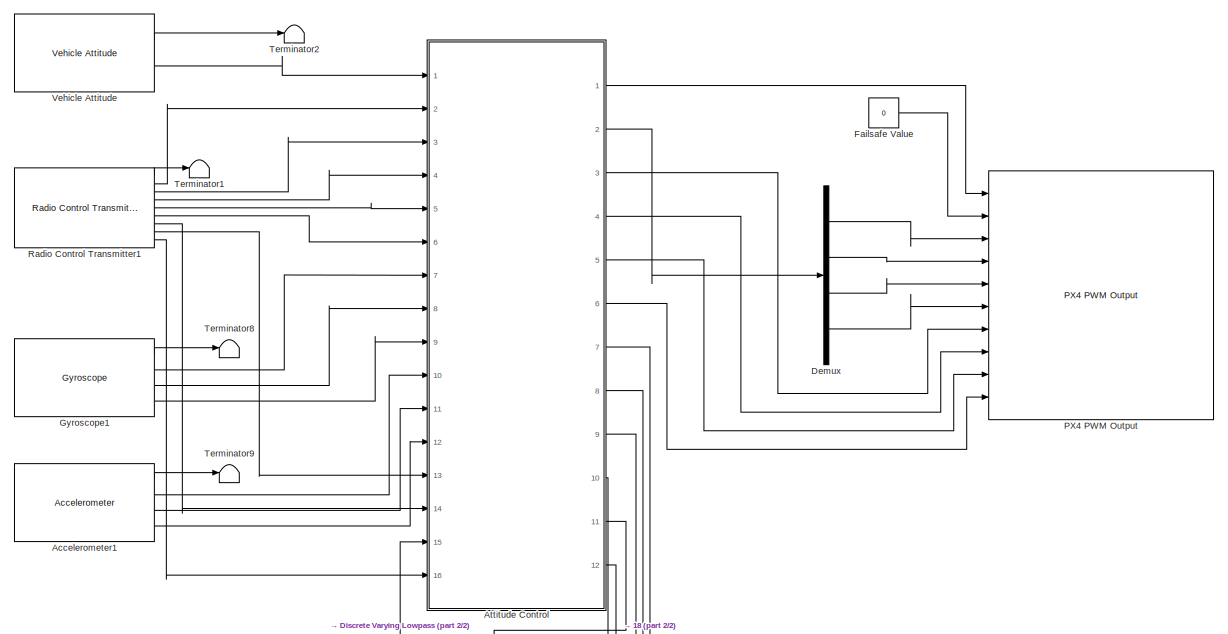
[diagram: root canvas - part 1/2, full width, top band]
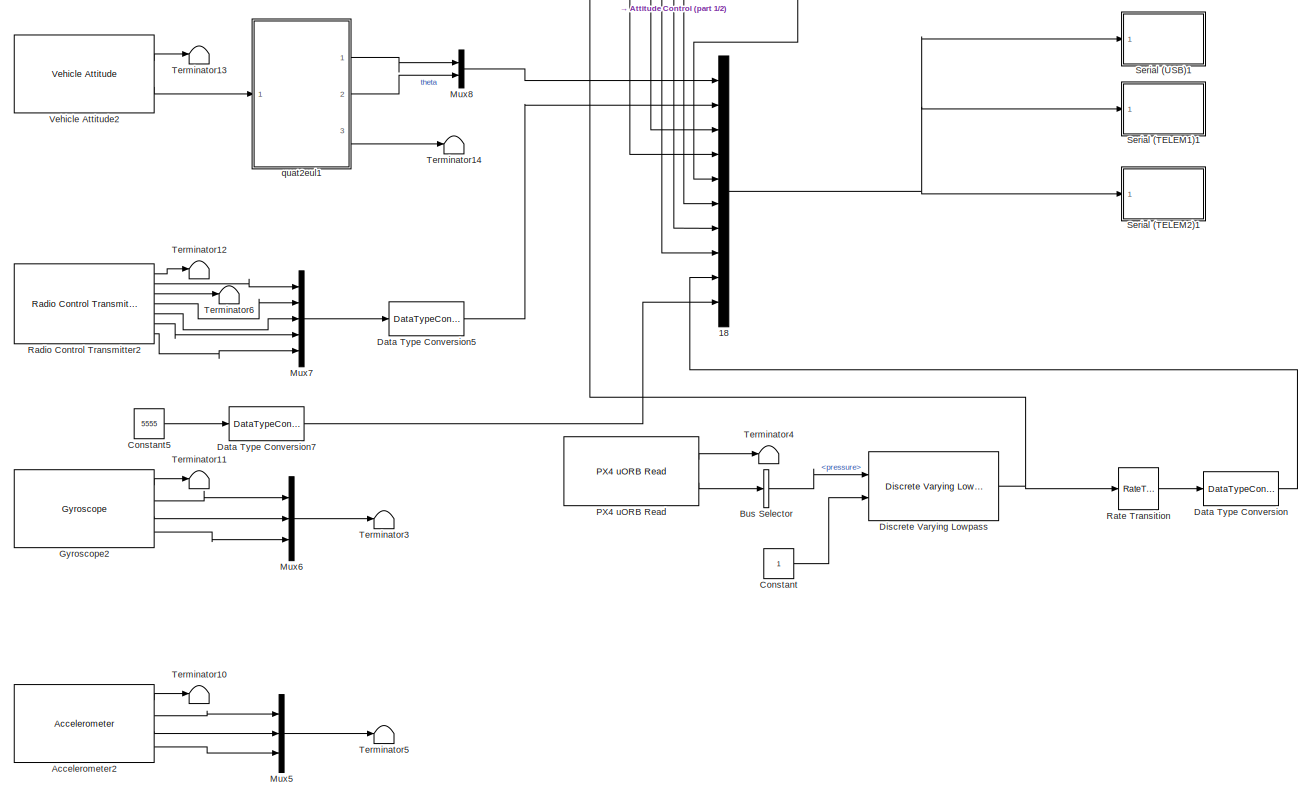
[diagram: root canvas - part 2/2, full width, bottom band]
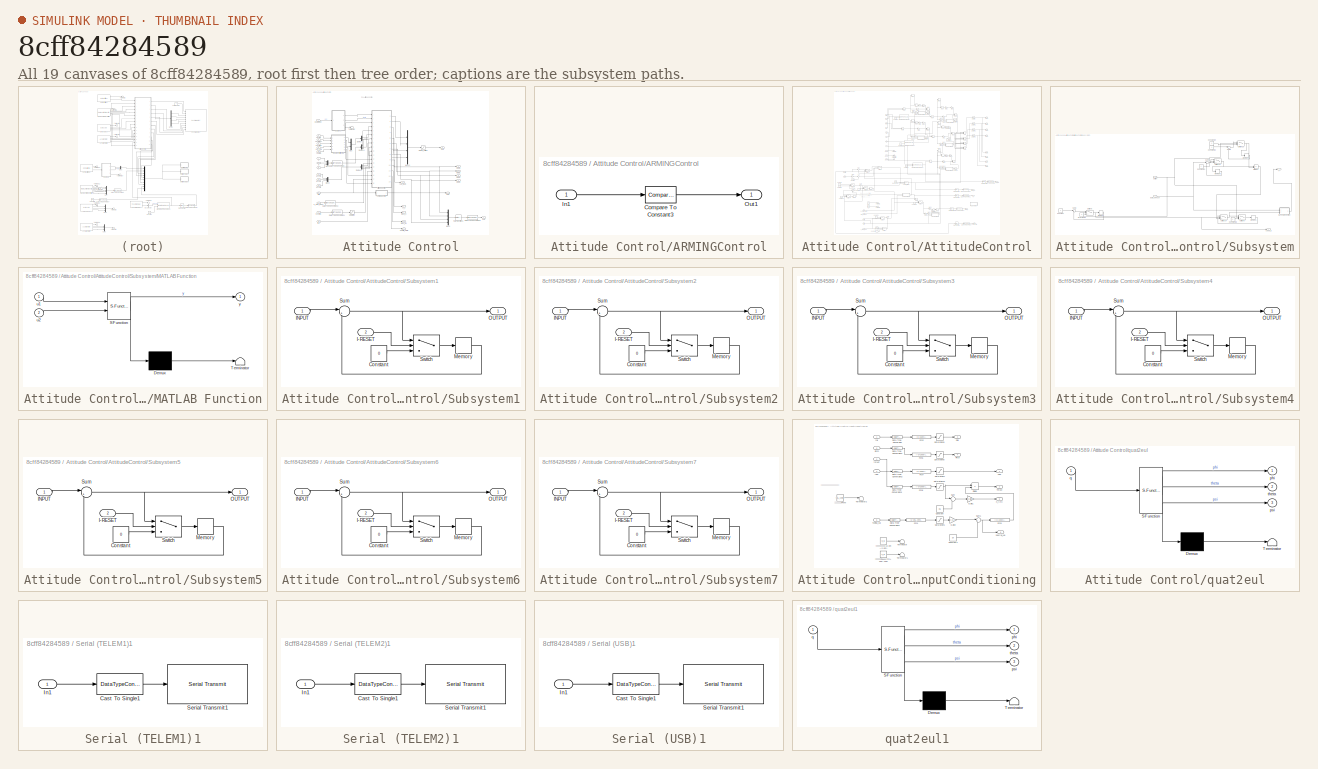
[diagram: thumbnail index - all 19 canvases of the model, root first then tree order]
MODEL slx_8cff84284589
KIND model
CONFIG AbsTol = auto
CONFIG EnableMultiTasking = on
CONFIG FixedStep = auto
CONFIG MaxStep = auto
CONFIG MinStep = auto
CONFIG RelTol = 1e-3
CONFIG SampleTimeConstraint = Unconstrained
CONFIG SolverName = FixedStepAuto
CONFIG StartTime = 0.0
CONFIG StopTime = 10.0
WORKSPACE source: mxarray member
WORKSPACE H_G = 2
WORKSPACE Sv = 1300
WORKSPACE Ta = 4000
WORKSPACE Tb = 1600
WORKSPACE Ts = 0.016
WORKSPACE VOL_center = 1515
WORKSPACE V_G = 100
WORKSPACE step_R = 0.2
WORKSPACE volume_G = 100
BLOCK [Mux] 18
  DisplayOption = bar
  Inputs = 10
  Ports = [10, 1]
BLOCK [Reference] Accelerometer1  REF=px4Sensorslib/Accelerometer
  Ports = [0, 4]
  SourceBlock = px4Sensorslib/Accelerometer
  SourceProductBaseCode = PX4AUTOPILOTS
  SourceType = PX4 Accelerometer
BLOCK [Reference] Accelerometer2  REF=px4Sensorslib/Accelerometer
  Ports = [0, 4]
  SourceBlock = px4Sensorslib/Accelerometer
  SourceProductBaseCode = PX4AUTOPILOTS
  SourceType = PX4 Accelerometer
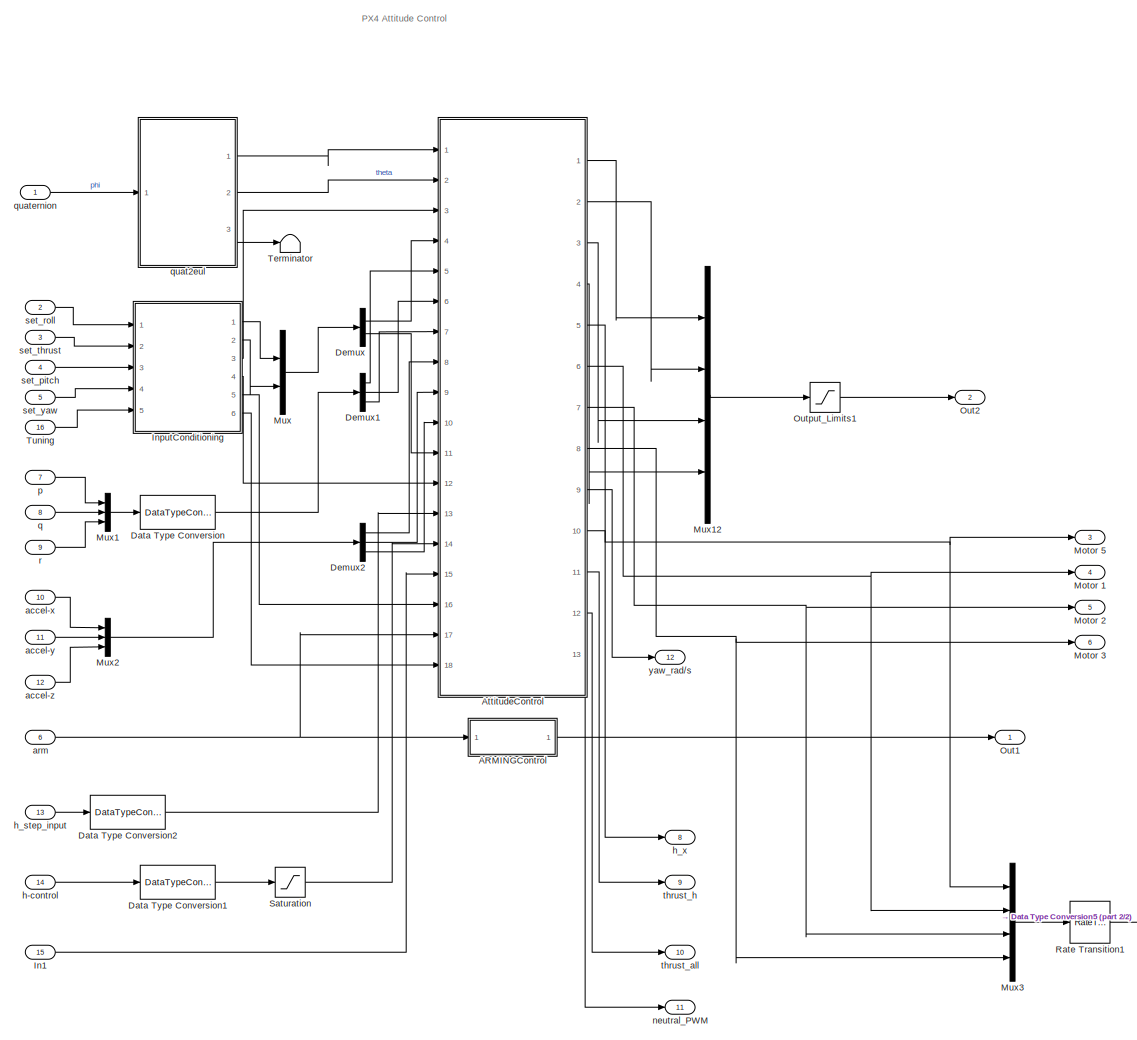
[diagram: Attitude Control - part 1/2, most of the canvas]
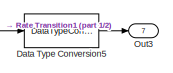
[diagram: Attitude Control - part 2/2, bottom right region]
BLOCK [SubSystem] Attitude Control
  Ports = [16, 12]
  RequestExecContextInheritance = off
BLOCK [SubSystem] Attitude Control/ARMINGControl
  Ports = [1, 1]
  RequestExecContextInheritance = off
BLOCK [Reference] Attitude Control/ARMINGControl/Compare To Constant3  REF=simulink/Logic and Bit
Operations/Compare
To Constant
  Ports = [1, 1]
  SourceBlock = simulink/Logic and Bit\nOperations/Compare\nTo Constant
  SourceProductBaseCode = SL
  SourceType = Compare To Constant
BLOCK [Inport] Attitude Control/ARMINGControl/In1
BLOCK [Outport] Attitude Control/ARMINGControl/Out1
  VectorParamsAs1DForOutWhenUnconnected = off
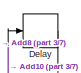
[diagram: Attitude Control/AttitudeControl - part 1/7, top center region]
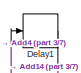
[diagram: Attitude Control/AttitudeControl - part 2/7, top center region]
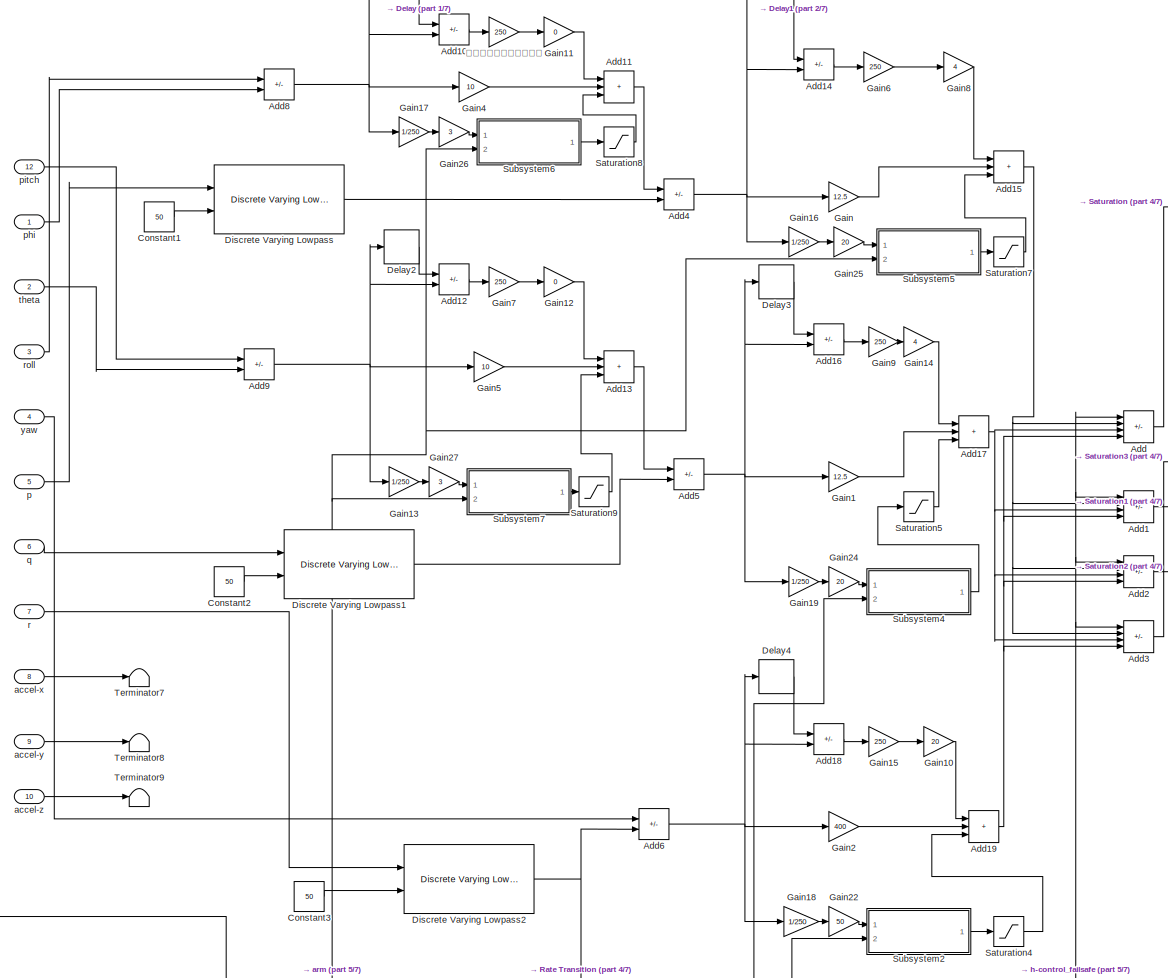
[diagram: Attitude Control/AttitudeControl - part 3/7, top center region]
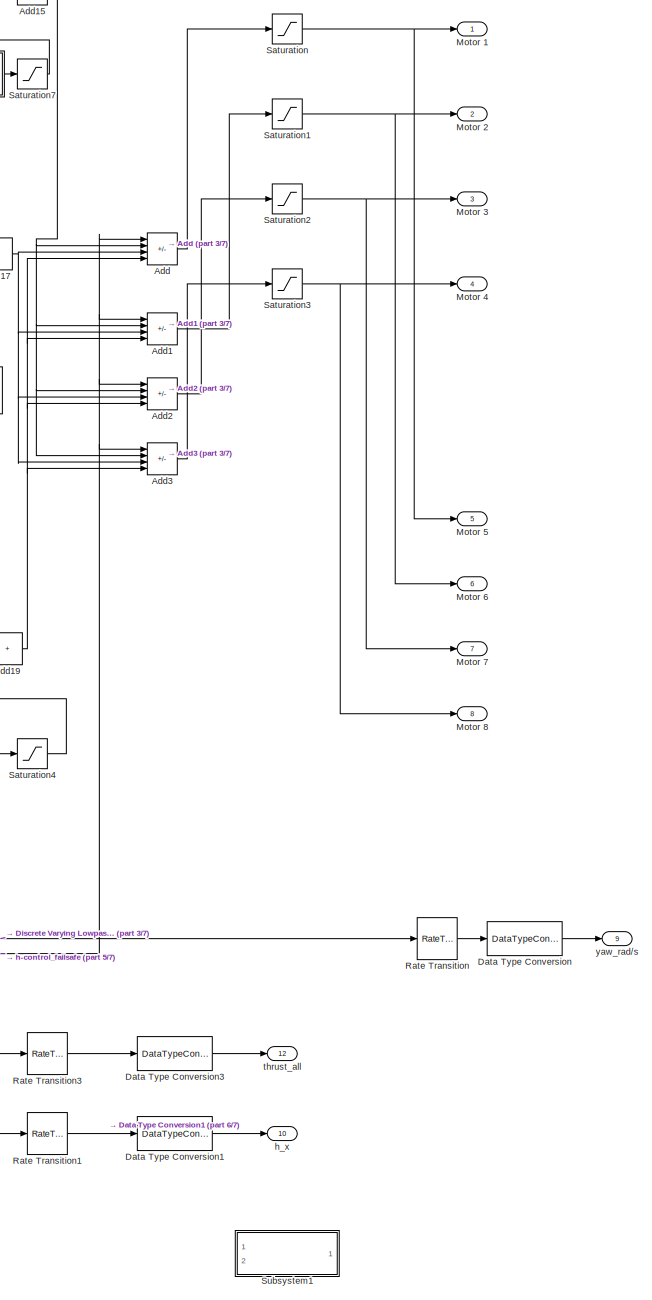
[diagram: Attitude Control/AttitudeControl - part 4/7, middle right region]
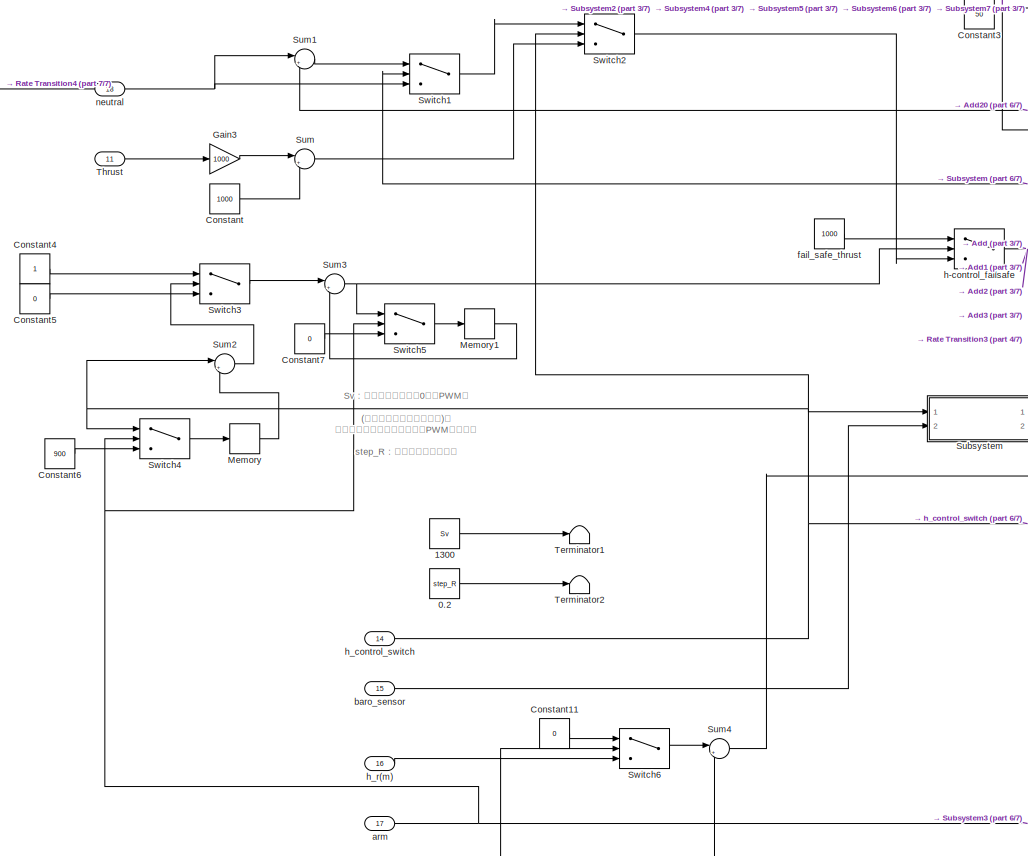
[diagram: Attitude Control/AttitudeControl - part 5/7, bottom left region]
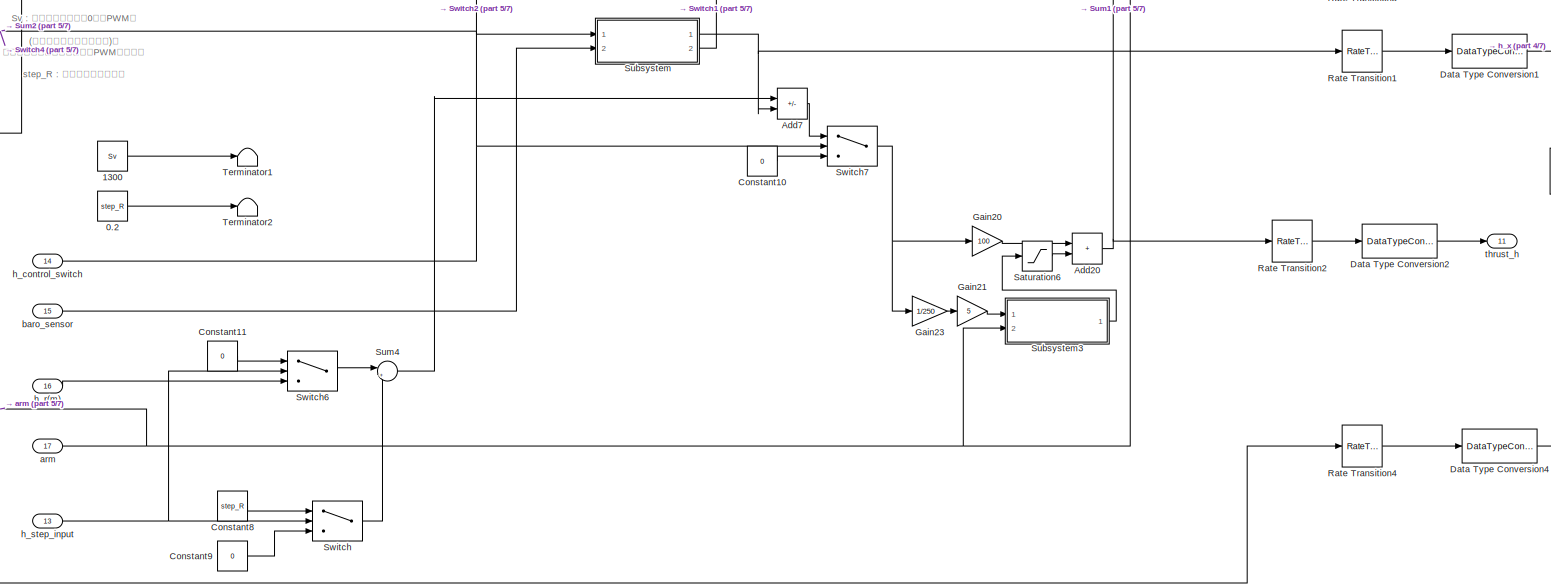
[diagram: Attitude Control/AttitudeControl - part 6/7, bottom center region]
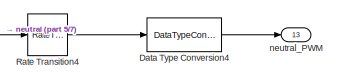
[diagram: Attitude Control/AttitudeControl - part 7/7, bottom right region]
BLOCK [SubSystem] Attitude Control/AttitudeControl
  Ports = [18, 13]
  RequestExecContextInheritance = off
BLOCK [Constant] Attitude Control/AttitudeControl/0.2
  Value = step_R
BLOCK [Constant] Attitude Control/AttitudeControl/1300
  Value = Sv
BLOCK [Sum] Attitude Control/AttitudeControl/Add
  IconShape = rectangular
  Inputs = +-++
  Ports = [4, 1]
BLOCK [Sum] Attitude Control/AttitudeControl/Add1
  IconShape = rectangular
  Inputs = ++-+
  Ports = [4, 1]
BLOCK [Sum] Attitude Control/AttitudeControl/Add10
  IconShape = rectangular
  Inputs = -+
  Ports = [2, 1]
BLOCK [Sum] Attitude Control/AttitudeControl/Add11
  IconShape = rectangular
  Inputs = +++
  Ports = [3, 1]
BLOCK [Sum] Attitude Control/AttitudeControl/Add12
  IconShape = rectangular
  Inputs = -+
  Ports = [2, 1]
BLOCK [Sum] Attitude Control/AttitudeControl/Add13
  IconShape = rectangular
  Inputs = +++
  Ports = [3, 1]
BLOCK [Sum] Attitude Control/AttitudeControl/Add14
  IconShape = rectangular
  Inputs = -+
  Ports = [2, 1]
BLOCK [Sum] Attitude Control/AttitudeControl/Add15
  IconShape = rectangular
  Inputs = +++
  Ports = [3, 1]
BLOCK [Sum] Attitude Control/AttitudeControl/Add16
  IconShape = rectangular
  Inputs = -+
  Ports = [2, 1]
BLOCK [Sum] Attitude Control/AttitudeControl/Add17
  IconShape = rectangular
  Inputs = +++
  Ports = [3, 1]
BLOCK [Sum] Attitude Control/AttitudeControl/Add18
  IconShape = rectangular
  Inputs = -+
  Ports = [2, 1]
BLOCK [Sum] Attitude Control/AttitudeControl/Add19
  IconShape = rectangular
  Inputs = +++
  Ports = [3, 1]
BLOCK [Sum] Attitude Control/AttitudeControl/Add2
  IconShape = rectangular
  Inputs = +++-
  Ports = [4, 1]
BLOCK [Sum] Attitude Control/AttitudeControl/Add20
  IconShape = rectangular
  Ports = [2, 1]
BLOCK [Sum] Attitude Control/AttitudeControl/Add3
  IconShape = rectangular
  Inputs = +---
  Ports = [4, 1]
BLOCK [Sum] Attitude Control/AttitudeControl/Add4
  IconShape = rectangular
  Inputs = +-
  Ports = [2, 1]
BLOCK [Sum] Attitude Control/AttitudeControl/Add5
  IconShape = rectangular
  Inputs = +-
  Ports = [2, 1]
BLOCK [Sum] Attitude Control/AttitudeControl/Add6
  IconShape = rectangular
  Inputs = +-
  Ports = [2, 1]
BLOCK [Sum] Attitude Control/AttitudeControl/Add7
  IconShape = rectangular
  Inputs = +-
  Ports = [2, 1]
BLOCK [Sum] Attitude Control/AttitudeControl/Add8
  IconShape = rectangular
  Inputs = +-
  Ports = [2, 1]
BLOCK [Sum] Attitude Control/AttitudeControl/Add9
  IconShape = rectangular
  Inputs = +-
  Ports = [2, 1]
BLOCK [Constant] Attitude Control/AttitudeControl/Constant
  Value = 1000
BLOCK [Constant] Attitude Control/AttitudeControl/Constant1
  Value = 50
BLOCK [Constant] Attitude Control/AttitudeControl/Constant10
  Value = 0
BLOCK [Constant] Attitude Control/AttitudeControl/Constant11
  Value = 0
BLOCK [Constant] Attitude Control/AttitudeControl/Constant2
  Value = 50
BLOCK [Constant] Attitude Control/AttitudeControl/Constant3
  Value = 50
BLOCK [Constant] Attitude Control/AttitudeControl/Constant4
BLOCK [Constant] Attitude Control/AttitudeControl/Constant5
  Value = 0
BLOCK [Constant] Attitude Control/AttitudeControl/Constant6
  Value = 900
BLOCK [Constant] Attitude Control/AttitudeControl/Constant7
  Value = 0
BLOCK [Constant] Attitude Control/AttitudeControl/Constant8
  Value = step_R
BLOCK [Constant] Attitude Control/AttitudeControl/Constant9
  Value = 0
BLOCK [DataTypeConversion] Attitude Control/AttitudeControl/Data Type Conversion
  RndMeth = Floor
  SaturateOnIntegerOverflow = off
BLOCK [DataTypeConversion] Attitude Control/AttitudeControl/Data Type Conversion1
  RndMeth = Floor
  SaturateOnIntegerOverflow = off
BLOCK [DataTypeConversion] Attitude Control/AttitudeControl/Data Type Conversion2
  RndMeth = Floor
  SaturateOnIntegerOverflow = off
BLOCK [DataTypeConversion] Attitude Control/AttitudeControl/Data Type Conversion3
  RndMeth = Floor
  SaturateOnIntegerOverflow = off
BLOCK [DataTypeConversion] Attitude Control/AttitudeControl/Data Type Conversion4
  RndMeth = Floor
  SaturateOnIntegerOverflow = off
BLOCK [Delay] Attitude Control/AttitudeControl/Delay
  DelayLength = 1
  InitialCondition = 0
  InputPortMap = u0
  Ports = [1, 1]
BLOCK [Delay] Attitude Control/AttitudeControl/Delay1
  DelayLength = 1
  InitialCondition = 0
  InputPortMap = u0
  Ports = [1, 1]
BLOCK [Delay] Attitude Control/AttitudeControl/Delay2
  DelayLength = 1
  InitialCondition = 0
  InputPortMap = u0
  Ports = [1, 1]
BLOCK [Delay] Attitude Control/AttitudeControl/Delay3
  DelayLength = 1
  InitialCondition = 0
  InputPortMap = u0
  Ports = [1, 1]
BLOCK [Delay] Attitude Control/AttitudeControl/Delay4
  DelayLength = 1
  InitialCondition = 0
  InputPortMap = u0
  Ports = [1, 1]
BLOCK [Reference] Attitude Control/AttitudeControl/Discrete Varying Lowpass  REF=cstblocks/Linear Parameter Varying/Discrete Varying Lowpass
  Ports = [2, 1]
  SourceBlock = cstblocks/Linear Parameter Varying/Discrete Varying Lowpass
  SourceProductBaseCode = CT
  SourceType = Discrete Varying Lowpass
BLOCK [Reference] Attitude Control/AttitudeControl/Discrete Varying Lowpass1  REF=cstblocks/Linear Parameter Varying/Discrete Varying Lowpass
  Ports = [2, 1]
  SourceBlock = cstblocks/Linear Parameter Varying/Discrete Varying Lowpass
  SourceProductBaseCode = CT
  SourceType = Discrete Varying Lowpass
BLOCK [Reference] Attitude Control/AttitudeControl/Discrete Varying Lowpass2  REF=cstblocks/Linear Parameter Varying/Discrete Varying Lowpass
  Ports = [2, 1]
  SourceBlock = cstblocks/Linear Parameter Varying/Discrete Varying Lowpass
  SourceProductBaseCode = CT
  SourceType = Discrete Varying Lowpass
BLOCK [Gain] Attitude Control/AttitudeControl/Gain
  Gain = 12.5
BLOCK [Gain] Attitude Control/AttitudeControl/Gain1
  Gain = 12.5
BLOCK [Gain] Attitude Control/AttitudeControl/Gain10
  Gain = 20
BLOCK [Gain] Attitude Control/AttitudeControl/Gain11
  Gain = 0
BLOCK [Gain] Attitude Control/AttitudeControl/Gain12
  Gain = 0
BLOCK [Gain] Attitude Control/AttitudeControl/Gain13
  Gain = 1/250
BLOCK [Gain] Attitude Control/AttitudeControl/Gain14
  Gain = 4
BLOCK [Gain] Attitude Control/AttitudeControl/Gain15
  Gain = 250
BLOCK [Gain] Attitude Control/AttitudeControl/Gain16
  Gain = 1/250
BLOCK [Gain] Attitude Control/AttitudeControl/Gain17
  Gain = 1/250
BLOCK [Gain] Attitude Control/AttitudeControl/Gain18
  Gain = 1/250
BLOCK [Gain] Attitude Control/AttitudeControl/Gain19
  Gain = 1/250
BLOCK [Gain] Attitude Control/AttitudeControl/Gain2
  Gain = 400
BLOCK [Gain] Attitude Control/AttitudeControl/Gain20
  Gain = 100
BLOCK [Gain] Attitude Control/AttitudeControl/Gain21
  Gain = 5
BLOCK [Gain] Attitude Control/AttitudeControl/Gain22
  Gain = 50
BLOCK [Gain] Attitude Control/AttitudeControl/Gain23
  Gain = 1/250
BLOCK [Gain] Attitude Control/AttitudeControl/Gain24
  Gain = 20
BLOCK [Gain] Attitude Control/AttitudeControl/Gain25
  Gain = 20
BLOCK [Gain] Attitude Control/AttitudeControl/Gain26
  Gain = 3
BLOCK [Gain] Attitude Control/AttitudeControl/Gain27
  Gain = 3
BLOCK [Gain] Attitude Control/AttitudeControl/Gain3
  Gain = 1000
BLOCK [Gain] Attitude Control/AttitudeControl/Gain4
  Gain = 10
BLOCK [Gain] Attitude Control/AttitudeControl/Gain5
  Gain = 10
BLOCK [Gain] Attitude Control/AttitudeControl/Gain6
  Gain = 250
BLOCK [Gain] Attitude Control/AttitudeControl/Gain7
  Gain = 250
BLOCK [Gain] Attitude Control/AttitudeControl/Gain8
  Gain = 4
BLOCK [Gain] Attitude Control/AttitudeControl/Gain9
  Gain = 250
BLOCK [Memory] Attitude Control/AttitudeControl/Memory
  InheritSampleTime = on
  InitialCondition = 900
BLOCK [Memory] Attitude Control/AttitudeControl/Memory1
  InheritSampleTime = on
BLOCK [Outport] Attitude Control/AttitudeControl/Motor 1
  OutDataTypeStr = uint16
  VectorParamsAs1DForOutWhenUnconnected = off
BLOCK [Outport] Attitude Control/AttitudeControl/Motor 2
  OutDataTypeStr = uint16
  Port = 2
  VectorParamsAs1DForOutWhenUnconnected = off
BLOCK [Outport] Attitude Control/AttitudeControl/Motor 3
  OutDataTypeStr = uint16
  Port = 3
  VectorParamsAs1DForOutWhenUnconnected = off
BLOCK [Outport] Attitude Control/AttitudeControl/Motor 4
  OutDataTypeStr = uint16
  Port = 4
  VectorParamsAs1DForOutWhenUnconnected = off
BLOCK [Outport] Attitude Control/AttitudeControl/Motor 5
  OutDataTypeStr = uint16
  Port = 5
  SampleTime = 1/250
  VectorParamsAs1DForOutWhenUnconnected = off
BLOCK [Outport] Attitude Control/AttitudeControl/Motor 6
  OutDataTypeStr = uint16
  Port = 6
  VectorParamsAs1DForOutWhenUnconnected = off
BLOCK [Outport] Attitude Control/AttitudeControl/Motor 7
  OutDataTypeStr = uint16
  Port = 7
  VectorParamsAs1DForOutWhenUnconnected = off
BLOCK [Outport] Attitude Control/AttitudeControl/Motor 8
  OutDataTypeStr = uint16
  Port = 8
  VectorParamsAs1DForOutWhenUnconnected = off
BLOCK [RateTransition] Attitude Control/AttitudeControl/Rate Transition
  OutPortSampleTime = 4
  OutPortSampleTimeMultiple = 4
  OutPortSampleTimeOpt = Multiple of input port sample time
BLOCK [RateTransition] Attitude Control/AttitudeControl/Rate Transition1
  OutPortSampleTime = 4
  OutPortSampleTimeMultiple = 4
  OutPortSampleTimeOpt = Multiple of input port sample time
BLOCK [RateTransition] Attitude Control/AttitudeControl/Rate Transition2
  OutPortSampleTime = 4
  OutPortSampleTimeMultiple = 4
  OutPortSampleTimeOpt = Multiple of input port sample time
BLOCK [RateTransition] Attitude Control/AttitudeControl/Rate Transition3
  OutPortSampleTime = 4
  OutPortSampleTimeMultiple = 4
  OutPortSampleTimeOpt = Multiple of input port sample time
BLOCK [RateTransition] Attitude Control/AttitudeControl/Rate Transition4
  OutPortSampleTime = 4
  OutPortSampleTimeMultiple = 4
  OutPortSampleTimeOpt = Multiple of input port sample time
BLOCK [Saturate] Attitude Control/AttitudeControl/Saturation
  LowerLimit = 1000
  OutDataTypeStr = uint16
  UpperLimit = 2000
BLOCK [Saturate] Attitude Control/AttitudeControl/Saturation1
  LowerLimit = 1000
  OutDataTypeStr = uint16
  UpperLimit = 2000
BLOCK [Saturate] Attitude Control/AttitudeControl/Saturation2
  LowerLimit = 1000
  OutDataTypeStr = uint16
  UpperLimit = 2000
BLOCK [Saturate] Attitude Control/AttitudeControl/Saturation3
  LowerLimit = 1000
  OutDataTypeStr = uint16
  UpperLimit = 2000
BLOCK [Saturate] Attitude Control/AttitudeControl/Saturation4
  LowerLimit = -100
  UpperLimit = 100
BLOCK [Saturate] Attitude Control/AttitudeControl/Saturation5
  LowerLimit = -100
  UpperLimit = 100
BLOCK [Saturate] Attitude Control/AttitudeControl/Saturation6
  LowerLimit = -50
  UpperLimit = 50
BLOCK [Saturate] Attitude Control/AttitudeControl/Saturation7
  LowerLimit = -100
  UpperLimit = 100
BLOCK [Saturate] Attitude Control/AttitudeControl/Saturation8
  LowerLimit = -100
  UpperLimit = 100
BLOCK [Saturate] Attitude Control/AttitudeControl/Saturation9
  LowerLimit = -100
  UpperLimit = 100
BLOCK [SubSystem] Attitude Control/AttitudeControl/Subsystem
  Ports = [2, 2]
  RequestExecContextInheritance = off
BLOCK [Constant] Attitude Control/AttitudeControl/Subsystem/Constant
BLOCK [Constant] Attitude Control/AttitudeControl/Subsystem/Constant16
  Value = 0
BLOCK [Constant] Attitude Control/AttitudeControl/Subsystem/Constant18
  Value = 0
BLOCK [Constant] Attitude Control/AttitudeControl/Subsystem/Constant19
  Value = 0
BLOCK [Constant] Attitude Control/AttitudeControl/Subsystem/Constant20
  Value = 0
BLOCK [Constant] Attitude Control/AttitudeControl/Subsystem/Constant22
BLOCK [Product] Attitude Control/AttitudeControl/Subsystem/Divide1
  Inputs = */
  Ports = [2, 1]
BLOCK [SubSystem] Attitude Control/AttitudeControl/Subsystem/MATLAB Function
  ErrorFcn = Stateflow.Translate.translate
  PermitHierarchicalResolution = ExplicitOnly
  Ports = [2, 1]
  RequestExecContextInheritance = off
  SFBlockType = MATLAB Function
  TreatAsAtomicUnit = on
BLOCK [Demux] Attitude Control/AttitudeControl/Subsystem/MATLAB Function/ Demux 
  Outputs = 1
  Ports = [1, 1]
BLOCK [S-Function] Attitude Control/AttitudeControl/Subsystem/MATLAB Function/ SFunction 
  EnableBusSupport = on
  FunctionName = sf_sfun
  PortCounts = [2 2]
  Ports = [2, 2]
  SFcnIsStateOwnerBlock = off
  SFunctionDeploymentMode = off
  Tag = Stateflow S-Function 1
BLOCK [Terminator] Attitude Control/AttitudeControl/Subsystem/MATLAB Function/ Terminator 
BLOCK [Inport] Attitude Control/AttitudeControl/Subsystem/MATLAB Function/u1
BLOCK [Inport] Attitude Control/AttitudeControl/Subsystem/MATLAB Function/u2
  Port = 2
BLOCK [Outport] Attitude Control/AttitudeControl/Subsystem/MATLAB Function/y
BLOCK [Memory] Attitude Control/AttitudeControl/Subsystem/Memory4
  InheritSampleTime = on
BLOCK [Memory] Attitude Control/AttitudeControl/Subsystem/Memory5
  InheritSampleTime = on
BLOCK [Memory] Attitude Control/AttitudeControl/Subsystem/Memory7
  InheritSampleTime = on
BLOCK [Memory] Attitude Control/AttitudeControl/Subsystem/Memory8
  InheritSampleTime = on
BLOCK [Sum] Attitude Control/AttitudeControl/Subsystem/Sum2
  Inputs = |++
  Ports = [2, 1]
BLOCK [Sum] Attitude Control/AttitudeControl/Subsystem/Sum4
  Inputs = |++
  Ports = [2, 1]
BLOCK [Sum] Attitude Control/AttitudeControl/Subsystem/Sum5
  Inputs = |++
  Ports = [2, 1]
BLOCK [Switch] Attitude Control/AttitudeControl/Subsystem/Switch10
  Criteria = u2 > Threshold
  InputSameDT = off
  SaturateOnIntegerOverflow = off
  Threshold = 1000
BLOCK [Switch] Attitude Control/AttitudeControl/Subsystem/Switch13
  Criteria = u2 > Threshold
  InputSameDT = off
  SaturateOnIntegerOverflow = off
  Threshold = 1000
BLOCK [Switch] Attitude Control/AttitudeControl/Subsystem/Switch14
  Criteria = u2 > Threshold
  InputSameDT = off
  SaturateOnIntegerOverflow = off
  Threshold = 100
BLOCK [Switch] Attitude Control/AttitudeControl/Subsystem/Switch5
  Criteria = u2 > Threshold
  InputSameDT = off
  SaturateOnIntegerOverflow = off
  Threshold = 1000
BLOCK [Switch] Attitude Control/AttitudeControl/Subsystem/Switch6
  Criteria = u2 > Threshold
  InputSameDT = off
  SaturateOnIntegerOverflow = off
  Threshold = 1000
BLOCK [Inport] Attitude Control/AttitudeControl/Subsystem/baro_sensor
  Port = 2
BLOCK [Outport] Attitude Control/AttitudeControl/Subsystem/count_a
  Port = 2
BLOCK [Inport] Attitude Control/AttitudeControl/Subsystem/switch
BLOCK [Outport] Attitude Control/AttitudeControl/Subsystem/y
BLOCK [SubSystem] Attitude Control/AttitudeControl/Subsystem1
  Commented = on
  Ports = [2, 1]
  RequestExecContextInheritance = off
BLOCK [Constant] Attitude Control/AttitudeControl/Subsystem1/Constant
  Value = 0
BLOCK [Inport] Attitude Control/AttitudeControl/Subsystem1/I-RESET
  Port = 2
BLOCK [Inport] Attitude Control/AttitudeControl/Subsystem1/INPUT
BLOCK [Memory] Attitude Control/AttitudeControl/Subsystem1/Memory
BLOCK [Outport] Attitude Control/AttitudeControl/Subsystem1/OUTPUT
BLOCK [Sum] Attitude Control/AttitudeControl/Subsystem1/Sum
  Inputs = |++
  Ports = [2, 1]
BLOCK [Switch] Attitude Control/AttitudeControl/Subsystem1/Switch
  Criteria = u2 > Threshold
  InputSameDT = off
  SaturateOnIntegerOverflow = off
  Threshold = 1000
BLOCK [SubSystem] Attitude Control/AttitudeControl/Subsystem2
  Ports = [2, 1]
  RequestExecContextInheritance = off
BLOCK [Constant] Attitude Control/AttitudeControl/Subsystem2/Constant
  Value = 0
BLOCK [Inport] Attitude Control/AttitudeControl/Subsystem2/I-RESET
  Port = 2
BLOCK [Inport] Attitude Control/AttitudeControl/Subsystem2/INPUT
BLOCK [Memory] Attitude Control/AttitudeControl/Subsystem2/Memory
  InheritSampleTime = on
BLOCK [Outport] Attitude Control/AttitudeControl/Subsystem2/OUTPUT
BLOCK [Sum] Attitude Control/AttitudeControl/Subsystem2/Sum
  Inputs = |++
  Ports = [2, 1]
BLOCK [Switch] Attitude Control/AttitudeControl/Subsystem2/Switch
  Criteria = u2 > Threshold
  InputSameDT = off
  SaturateOnIntegerOverflow = off
  Threshold = 1000
BLOCK [SubSystem] Attitude Control/AttitudeControl/Subsystem3
  Ports = [2, 1]
  RequestExecContextInheritance = off
BLOCK [Constant] Attitude Control/AttitudeControl/Subsystem3/Constant
  Value = 0
BLOCK [Inport] Attitude Control/AttitudeControl/Subsystem3/I-RESET
  Port = 2
BLOCK [Inport] Attitude Control/AttitudeControl/Subsystem3/INPUT
BLOCK [Memory] Attitude Control/AttitudeControl/Subsystem3/Memory
  InheritSampleTime = on
BLOCK [Outport] Attitude Control/AttitudeControl/Subsystem3/OUTPUT
BLOCK [Sum] Attitude Control/AttitudeControl/Subsystem3/Sum
  Inputs = |++
  Ports = [2, 1]
BLOCK [Switch] Attitude Control/AttitudeControl/Subsystem3/Switch
  Criteria = u2 > Threshold
  InputSameDT = off
  SaturateOnIntegerOverflow = off
  Threshold = 1000
BLOCK [SubSystem] Attitude Control/AttitudeControl/Subsystem4
  Ports = [2, 1]
  RequestExecContextInheritance = off
BLOCK [Constant] Attitude Control/AttitudeControl/Subsystem4/Constant
  Value = 0
BLOCK [Inport] Attitude Control/AttitudeControl/Subsystem4/I-RESET
  Port = 2
BLOCK [Inport] Attitude Control/AttitudeControl/Subsystem4/INPUT
BLOCK [Memory] Attitude Control/AttitudeControl/Subsystem4/Memory
  InheritSampleTime = on
BLOCK [Outport] Attitude Control/AttitudeControl/Subsystem4/OUTPUT
BLOCK [Sum] Attitude Control/AttitudeControl/Subsystem4/Sum
  Inputs = |++
  Ports = [2, 1]
BLOCK [Switch] Attitude Control/AttitudeControl/Subsystem4/Switch
  Criteria = u2 > Threshold
  InputSameDT = off
  SaturateOnIntegerOverflow = off
  Threshold = 1000
BLOCK [SubSystem] Attitude Control/AttitudeControl/Subsystem5
  Ports = [2, 1]
  RequestExecContextInheritance = off
BLOCK [Constant] Attitude Control/AttitudeControl/Subsystem5/Constant
  Value = 0
BLOCK [Inport] Attitude Control/AttitudeControl/Subsystem5/I-RESET
  Port = 2
BLOCK [Inport] Attitude Control/AttitudeControl/Subsystem5/INPUT
BLOCK [Memory] Attitude Control/AttitudeControl/Subsystem5/Memory
  InheritSampleTime = on
BLOCK [Outport] Attitude Control/AttitudeControl/Subsystem5/OUTPUT
BLOCK [Sum] Attitude Control/AttitudeControl/Subsystem5/Sum
  Inputs = |++
  Ports = [2, 1]
BLOCK [Switch] Attitude Control/AttitudeControl/Subsystem5/Switch
  Criteria = u2 > Threshold
  InputSameDT = off
  SaturateOnIntegerOverflow = off
  Threshold = 1000
BLOCK [SubSystem] Attitude Control/AttitudeControl/Subsystem6
  Ports = [2, 1]
  RequestExecContextInheritance = off
BLOCK [Constant] Attitude Control/AttitudeControl/Subsystem6/Constant
  Value = 0
BLOCK [Inport] Attitude Control/AttitudeControl/Subsystem6/I-RESET
  Port = 2
BLOCK [Inport] Attitude Control/AttitudeControl/Subsystem6/INPUT
BLOCK [Memory] Attitude Control/AttitudeControl/Subsystem6/Memory
  InheritSampleTime = on
BLOCK [Outport] Attitude Control/AttitudeControl/Subsystem6/OUTPUT
BLOCK [Sum] Attitude Control/AttitudeControl/Subsystem6/Sum
  Inputs = |++
  Ports = [2, 1]
BLOCK [Switch] Attitude Control/AttitudeControl/Subsystem6/Switch
  Criteria = u2 > Threshold
  InputSameDT = off
  SaturateOnIntegerOverflow = off
  Threshold = 1000
BLOCK [SubSystem] Attitude Control/AttitudeControl/Subsystem7
  Ports = [2, 1]
  RequestExecContextInheritance = off
BLOCK [Constant] Attitude Control/AttitudeControl/Subsystem7/Constant
  Value = 0
BLOCK [Inport] Attitude Control/AttitudeControl/Subsystem7/I-RESET
  Port = 2
BLOCK [Inport] Attitude Control/AttitudeControl/Subsystem7/INPUT
BLOCK [Memory] Attitude Control/AttitudeControl/Subsystem7/Memory
  InheritSampleTime = on
BLOCK [Outport] Attitude Control/AttitudeControl/Subsystem7/OUTPUT
BLOCK [Sum] Attitude Control/AttitudeControl/Subsystem7/Sum
  Inputs = |++
  Ports = [2, 1]
BLOCK [Switch] Attitude Control/AttitudeControl/Subsystem7/Switch
  Criteria = u2 > Threshold
  InputSameDT = off
  SaturateOnIntegerOverflow = off
  Threshold = 1000
BLOCK [Sum] Attitude Control/AttitudeControl/Sum
  Inputs = |++
  Ports = [2, 1]
BLOCK [Sum] Attitude Control/AttitudeControl/Sum1
  Inputs = |++
  Ports = [2, 1]
BLOCK [Sum] Attitude Control/AttitudeControl/Sum2
  Inputs = |+-
  Ports = [2, 1]
BLOCK [Sum] Attitude Control/AttitudeControl/Sum3
  Inputs = |++
  Ports = [2, 1]
BLOCK [Sum] Attitude Control/AttitudeControl/Sum4
  Inputs = |++
  Ports = [2, 1]
BLOCK [Switch] Attitude Control/AttitudeControl/Switch
  Criteria = u2 > Threshold
  InputSameDT = off
  SaturateOnIntegerOverflow = off
  Threshold = 1000
BLOCK [Switch] Attitude Control/AttitudeControl/Switch1
  Criteria = u2 > Threshold
  InputSameDT = off
  SaturateOnIntegerOverflow = off
  Threshold = 100
BLOCK [Switch] Attitude Control/AttitudeControl/Switch2
  Criteria = u2 > Threshold
  InputSameDT = off
  SaturateOnIntegerOverflow = off
  Threshold = 1000
BLOCK [Switch] Attitude Control/AttitudeControl/Switch3
  Criteria = u2 > Threshold
  InputSameDT = off
  SaturateOnIntegerOverflow = off
  Threshold = 500
BLOCK [Switch] Attitude Control/AttitudeControl/Switch4
  Criteria = u2 > Threshold
  InputSameDT = off
  SaturateOnIntegerOverflow = off
  Threshold = 1000
BLOCK [Switch] Attitude Control/AttitudeControl/Switch5
  Criteria = u2 > Threshold
  InputSameDT = off
  SaturateOnIntegerOverflow = off
  Threshold = 1000
BLOCK [Switch] Attitude Control/AttitudeControl/Switch6
  Criteria = u2 > Threshold
  InputSameDT = off
  SaturateOnIntegerOverflow = off
  Threshold = 1000
BLOCK [Switch] Attitude Control/AttitudeControl/Switch7
  Criteria = u2 > Threshold
  InputSameDT = off
  SaturateOnIntegerOverflow = off
  Threshold = 1000
BLOCK [Terminator] Attitude Control/AttitudeControl/Terminator1
BLOCK [Terminator] Attitude Control/AttitudeControl/Terminator2
BLOCK [Terminator] Attitude Control/AttitudeControl/Terminator7
BLOCK [Terminator] Attitude Control/AttitudeControl/Terminator8
BLOCK [Terminator] Attitude Control/AttitudeControl/Terminator9
BLOCK [Inport] Attitude Control/AttitudeControl/Thrust
  Port = 11
BLOCK [Inport] Attitude Control/AttitudeControl/accel-x
  Port = 8
BLOCK [Inport] Attitude Control/AttitudeControl/accel-y
  Port = 9
BLOCK [Inport] Attitude Control/AttitudeControl/accel-z
  Port = 10
BLOCK [Inport] Attitude Control/AttitudeControl/arm
  Port = 17
BLOCK [Inport] Attitude Control/AttitudeControl/baro_sensor
  Port = 15
BLOCK [Constant] Attitude Control/AttitudeControl/fail_safe_thrust
  Value = 1000
BLOCK [Switch] Attitude Control/AttitudeControl/h-control_failsafe
  Criteria = u2 > Threshold
  InputSameDT = off
  SaturateOnIntegerOverflow = off
  Threshold = 1
BLOCK [Inport] Attitude Control/AttitudeControl/h_control_switch
  Port = 14
BLOCK [Inport] Attitude Control/AttitudeControl/h_r(m)
  Port = 16
BLOCK [Inport] Attitude Control/AttitudeControl/h_step_input
  Port = 13
BLOCK [Outport] Attitude Control/AttitudeControl/h_x
  Port = 10
BLOCK [Inport] Attitude Control/AttitudeControl/neutral
  Port = 18
BLOCK [Outport] Attitude Control/AttitudeControl/neutral_PWM
  Port = 13
BLOCK [Inport] Attitude Control/AttitudeControl/p
  Port = 5
BLOCK [Inport] Attitude Control/AttitudeControl/phi
BLOCK [Inport] Attitude Control/AttitudeControl/pitch
  Port = 12
BLOCK [Inport] Attitude Control/AttitudeControl/q
  Port = 6
BLOCK [Inport] Attitude Control/AttitudeControl/r
  Port = 7
BLOCK [Inport] Attitude Control/AttitudeControl/roll
  Port = 3
BLOCK [Inport] Attitude Control/AttitudeControl/theta
  Port = 2
BLOCK [Outport] Attitude Control/AttitudeControl/thrust_all
  Port = 12
BLOCK [Outport] Attitude Control/AttitudeControl/thrust_h
  Port = 11
BLOCK [Inport] Attitude Control/AttitudeControl/yaw
  Port = 4
BLOCK [Outport] Attitude Control/AttitudeControl/yaw_rad//s
  Port = 9
BLOCK [Gain] Attitude Control/AttitudeControl/サンプリング周期の逆数
  Gain = 250
BLOCK [DataTypeConversion] Attitude Control/Data Type Conversion
  OutDataTypeStr = double
  RndMeth = Floor
  SaturateOnIntegerOverflow = off
BLOCK [DataTypeConversion] Attitude Control/Data Type Conversion1
  RndMeth = Floor
  SaturateOnIntegerOverflow = off
BLOCK [DataTypeConversion] Attitude Control/Data Type Conversion2
  RndMeth = Floor
  SaturateOnIntegerOverflow = off
BLOCK [DataTypeConversion] Attitude Control/Data Type Conversion5
  RndMeth = Floor
  SaturateOnIntegerOverflow = off
BLOCK [Demux] Attitude Control/Demux
  Outputs = 2
  Ports = [1, 2]
BLOCK [Demux] Attitude Control/Demux1
  Outputs = 3
  Ports = [1, 3]
BLOCK [Demux] Attitude Control/Demux2
  Outputs = 3
  Ports = [1, 3]
BLOCK [Inport] Attitude Control/In1
  Port = 15
BLOCK [SubSystem] Attitude Control/InputConditioning
  Ports = [5, 6]
  RequestExecContextInheritance = off
BLOCK [Constant] Attitude Control/InputConditioning/Constant
  Value = 0.5
BLOCK [Constant] Attitude Control/InputConditioning/Constant1
  Value = Sv
BLOCK [DataTypeConversion] Attitude Control/InputConditioning/Data Type Conversion
  OutDataTypeStr = double
  RndMeth = Floor
  SaturateOnIntegerOverflow = off
BLOCK [DataTypeConversion] Attitude Control/InputConditioning/Data Type Conversion1
  OutDataTypeStr = double
  RndMeth = Floor
  SaturateOnIntegerOverflow = off
BLOCK [DataTypeConversion] Attitude Control/InputConditioning/Data Type Conversion2
  OutDataTypeStr = double
  RndMeth = Floor
  SaturateOnIntegerOverflow = off
BLOCK [DataTypeConversion] Attitude Control/InputConditioning/Data Type Conversion3
  OutDataTypeStr = double
  RndMeth = Floor
  SaturateOnIntegerOverflow = off
BLOCK [DataTypeConversion] Attitude Control/InputConditioning/Data Type Conversion4
  OutDataTypeStr = double
  RndMeth = Floor
  SaturateOnIntegerOverflow = off
BLOCK [Product] Attitude Control/InputConditioning/Divide
  Inputs = **
  Ports = [2, 1]
BLOCK [Fcn] Attitude Control/InputConditioning/Fcn1
  Expr = (u - VOL_center) / 500
BLOCK [Fcn] Attitude Control/InputConditioning/Fcn2
  Expr = (u - 1500) / 500
BLOCK [Fcn] Attitude Control/InputConditioning/Fcn3
  Expr = ((u - 1000) / 1000)/0.5
BLOCK [Fcn] Attitude Control/InputConditioning/Fcn5
  Expr = (-u + 1500) / 500
BLOCK [Fcn] Attitude Control/InputConditioning/Fcn6
  Expr = (-u +2000) / 1000
BLOCK [Fcn] Attitude Control/InputConditioning/Fcn7
  Expr = (u - 1500) / 500
BLOCK [Gain] Attitude Control/InputConditioning/Gain1
  Gain = H_G/0.5
BLOCK [Gain] Attitude Control/InputConditioning/Gain2
  Gain = V_G
BLOCK [Outport] Attitude Control/InputConditioning/Pitch
  Port = 4
  VectorParamsAs1DForOutWhenUnconnected = off
BLOCK [Outport] Attitude Control/InputConditioning/Roll
  Port = 3
  VectorParamsAs1DForOutWhenUnconnected = off
BLOCK [Saturate] Attitude Control/InputConditioning/Saturation1
  LowerLimit = -1
  UpperLimit = 1
BLOCK [Saturate] Attitude Control/InputConditioning/Saturation10
  LowerLimit = 0
  UpperLimit = 1
BLOCK [Saturate] Attitude Control/InputConditioning/Saturation7
  LowerLimit = -1
  UpperLimit = 1
BLOCK [Saturate] Attitude Control/InputConditioning/Saturation8
  LowerLimit = -1
  UpperLimit = 1
BLOCK [Saturate] Attitude Control/InputConditioning/Saturation9
  LowerLimit = -1
  UpperLimit = 1
BLOCK [Sum] Attitude Control/InputConditioning/Sum
  Inputs = |+-
  Ports = [2, 1]
BLOCK [Sum] Attitude Control/InputConditioning/Sum1
  Inputs = |++
  Ports = [2, 1]
BLOCK [Terminator] Attitude Control/InputConditioning/Terminator
BLOCK [Terminator] Attitude Control/InputConditioning/Terminator1
BLOCK [Terminator] Attitude Control/InputConditioning/Terminator2
BLOCK [Outport] Attitude Control/InputConditioning/Thrust
  Port = 2
  VectorParamsAs1DForOutWhenUnconnected = off
BLOCK [Inport] Attitude Control/InputConditioning/Tuning_val
  Port = 5
BLOCK [Outport] Attitude Control/InputConditioning/Yaw
  VectorParamsAs1DForOutWhenUnconnected = off
BLOCK [Outport] Attitude Control/InputConditioning/h_r(m)
  Port = 5
BLOCK [Outport] Attitude Control/InputConditioning/neutral_val
  Port = 6
BLOCK [Inport] Attitude Control/InputConditioning/pitch
  Port = 3
BLOCK [Inport] Attitude Control/InputConditioning/roll
BLOCK [Inport] Attitude Control/InputConditioning/thrust
  Port = 2
BLOCK [Inport] Attitude Control/InputConditioning/yaw
  Port = 4
BLOCK [Constant] Attitude Control/InputConditioning/つまみによるPWM調整幅(+100~-100)
  Value = V_G
BLOCK [Constant] Attitude Control/InputConditioning/つまみの中央値PWM
  Value = VOL_center
BLOCK [Constant] Attitude Control/InputConditioning/スラストの入力上限(+2.0m~-2.0m)
  Value = H_G
BLOCK [Outport] Attitude Control/Motor 1
  OutDataTypeStr = uint16
  Port = 4
  VectorParamsAs1DForOutWhenUnconnected = off
BLOCK [Outport] Attitude Control/Motor 2
  OutDataTypeStr = uint16
  Port = 5
  VectorParamsAs1DForOutWhenUnconnected = off
BLOCK [Outport] Attitude Control/Motor 3
  OutDataTypeStr = uint16
  Port = 6
  VectorParamsAs1DForOutWhenUnconnected = off
BLOCK [Outport] Attitude Control/Motor 5
  OutDataTypeStr = uint16
  Port = 3
  VectorParamsAs1DForOutWhenUnconnected = off
BLOCK [Mux] Attitude Control/Mux
  DisplayOption = bar
  Inputs = 2
  Ports = [2, 1]
BLOCK [Mux] Attitude Control/Mux1
  DisplayOption = bar
  Inputs = 3
  Ports = [3, 1]
BLOCK [Mux] Attitude Control/Mux12
  DisplayOption = bar
  Ports = [4, 1]
BLOCK [Mux] Attitude Control/Mux2
  DisplayOption = bar
  Inputs = 3
  Ports = [3, 1]
BLOCK [Mux] Attitude Control/Mux3
  DisplayOption = bar
  Ports = [4, 1]
BLOCK [Outport] Attitude Control/Out1
  VectorParamsAs1DForOutWhenUnconnected = off
BLOCK [Outport] Attitude Control/Out2
  Port = 2
  VectorParamsAs1DForOutWhenUnconnected = off
BLOCK [Outport] Attitude Control/Out3
  Port = 7
BLOCK [Saturate] Attitude Control/Output_Limits1
  LowerLimit = 1000
  UpperLimit = 2000
BLOCK [RateTransition] Attitude Control/Rate Transition1
  OutPortSampleTimeMultiple = 4
  OutPortSampleTimeOpt = Multiple of input port sample time
BLOCK [Saturate] Attitude Control/Saturation
  LowerLimit = 0
  UpperLimit = 1600
BLOCK [Terminator] Attitude Control/Terminator
BLOCK [Inport] Attitude Control/Tuning
  Port = 16
BLOCK [Inport] Attitude Control/accel-x
  Port = 10
BLOCK [Inport] Attitude Control/accel-y
  Port = 11
BLOCK [Inport] Attitude Control/accel-z
  Port = 12
BLOCK [Inport] Attitude Control/arm
  OutDataTypeStr = uint16
  Port = 6
BLOCK [Inport] Attitude Control/h-control
  Port = 14
BLOCK [Inport] Attitude Control/h_step_input
  Port = 13
BLOCK [Outport] Attitude Control/h_x
  Port = 8
BLOCK [Outport] Attitude Control/neutral_PWM
  Port = 11
BLOCK [Inport] Attitude Control/p
  Port = 7
BLOCK [Inport] Attitude Control/q
  Port = 8
BLOCK [SubSystem] Attitude Control/quat2eul
  ErrorFcn = Stateflow.Translate.translate
  PermitHierarchicalResolution = ExplicitOnly
  Ports = [1, 3]
  RequestExecContextInheritance = off
  SFBlockType = MATLAB Function
  TreatAsAtomicUnit = on
BLOCK [Demux] Attitude Control/quat2eul/ Demux 
  Outputs = 1
  Ports = [1, 1]
BLOCK [S-Function] Attitude Control/quat2eul/ SFunction 
  EnableBusSupport = on
  FunctionName = sf_sfun
  PortCounts = [1 4]
  Ports = [1, 4]
  SFcnIsStateOwnerBlock = off
  SFunctionDeploymentMode = off
  Tag = Stateflow S-Function 10
BLOCK [Terminator] Attitude Control/quat2eul/ Terminator 
BLOCK [Outport] Attitude Control/quat2eul/phi
  VectorParamsAs1DForOutWhenUnconnected = off
BLOCK [Outport] Attitude Control/quat2eul/psi
  Port = 3
  VectorParamsAs1DForOutWhenUnconnected = off
BLOCK [Inport] Attitude Control/quat2eul/q
BLOCK [Outport] Attitude Control/quat2eul/theta
  Port = 2
  VectorParamsAs1DForOutWhenUnconnected = off
BLOCK [Inport] Attitude Control/quaternion
BLOCK [Inport] Attitude Control/r
  Port = 9
BLOCK [Inport] Attitude Control/set_pitch
  OutDataTypeStr = uint16
  Port = 4
BLOCK [Inport] Attitude Control/set_roll
  OutDataTypeStr = uint16
  Port = 2
BLOCK [Inport] Attitude Control/set_thrust
  OutDataTypeStr = uint16
  Port = 3
BLOCK [Inport] Attitude Control/set_yaw
  OutDataTypeStr = uint16
  Port = 5
BLOCK [Outport] Attitude Control/thrust_all
  Port = 10
BLOCK [Outport] Attitude Control/thrust_h
  Port = 9
BLOCK [Outport] Attitude Control/yaw_rad//s
  Port = 12
BLOCK [BusSelector] Bus Selector
  OutputSignals = pressure
  Ports = [1, 1]
BLOCK [Constant] Constant
BLOCK [Constant] Constant5
  Value = 5555
BLOCK [DataTypeConversion] Data Type Conversion
  RndMeth = Floor
  SaturateOnIntegerOverflow = off
BLOCK [DataTypeConversion] Data Type Conversion5
  RndMeth = Floor
  SaturateOnIntegerOverflow = off
BLOCK [DataTypeConversion] Data Type Conversion7
  RndMeth = Floor
  SaturateOnIntegerOverflow = off
BLOCK [Demux] Demux
  Ports = [1, 4]
BLOCK [Reference] Discrete Varying Lowpass  REF=cstblocks/Linear Parameter Varying/Discrete Varying Lowpass
  Ports = [2, 1]
  SourceBlock = cstblocks/Linear Parameter Varying/Discrete Varying Lowpass
  SourceProductBaseCode = CT
  SourceType = Discrete Varying Lowpass
BLOCK [Constant] Failsafe Value
  OutDataTypeStr = boolean
  SampleTime = -1
  Value = 0
BLOCK [Reference] Gyroscope1  REF=px4Sensorslib/Gyroscope
  Ports = [0, 4]
  SourceBlock = px4Sensorslib/Gyroscope
  SourceProductBaseCode = PX4AUTOPILOTS
  SourceType = PX4 Gyroscope
BLOCK [Reference] Gyroscope2  REF=px4Sensorslib/Gyroscope
  Ports = [0, 4]
  SourceBlock = px4Sensorslib/Gyroscope
  SourceProductBaseCode = PX4AUTOPILOTS
  SourceType = PX4 Gyroscope
BLOCK [Mux] Mux5
  DisplayOption = bar
  Inputs = 3
  Ports = [3, 1]
BLOCK [Mux] Mux6
  DisplayOption = bar
  Inputs = 3
  Ports = [3, 1]
BLOCK [Mux] Mux7
  DisplayOption = bar
  Inputs = 5
  Ports = [5, 1]
BLOCK [Mux] Mux8
  DisplayOption = bar
  Inputs = 2
  Ports = [2, 1]
BLOCK [Reference] PX4 PWM Output  REF=px4lib/PX4 PWM Output
  Ports = [10]
  SourceBlock = px4lib/PX4 PWM Output
  SourceProductBaseCode = PX4AUTOPILOTS
  SourceType = PX4 PWM Output
BLOCK [Reference] PX4 uORB Read  REF=px4uORBlib/PX4 uORB Read
  Ports = [0, 2]
  SourceBlock = px4uORBlib/PX4 uORB Read
  SourceProductBaseCode = PX4AUTOPILOTS
  SourceType = PX4 uORB Read
BLOCK [Reference] Radio Control Transmitter1  REF=px4Sensorslib/Radio Control Transmitter
  Ports = [0, 9]
  SourceBlock = px4Sensorslib/Radio Control Transmitter
  SourceProductBaseCode = PX4AUTOPILOTS
  SourceType = PX4 Radio Control Transmitter
BLOCK [Reference] Radio Control Transmitter2  REF=px4Sensorslib/Radio Control Transmitter
  Ports = [0, 7]
  SourceBlock = px4Sensorslib/Radio Control Transmitter
  SourceProductBaseCode = PX4AUTOPILOTS
  SourceType = PX4 Radio Control Transmitter
BLOCK [RateTransition] Rate Transition
  OutPortSampleTime = 4
  OutPortSampleTimeMultiple = 4
  OutPortSampleTimeOpt = Multiple of input port sample time
BLOCK [SubSystem] Serial (TELEM1)1
  Ports = [1]
  RequestExecContextInheritance = off
BLOCK [DataTypeConversion] Serial (TELEM1)1/Cast To Single1
  OutDataTypeStr = single
  RndMeth = Floor
  SaturateOnIntegerOverflow = off
BLOCK [Inport] Serial (TELEM1)1/In1
BLOCK [Reference] Serial (TELEM1)1/Serial Transmit1  REF=px4lib/Serial Transmit
  Ports = [1]
  SourceBlock = px4lib/Serial Transmit
  SourceProductBaseCode = PX4AUTOPILOTS
  SourceType = PX4 Serial Transmit
BLOCK [SubSystem] Serial (TELEM2)1
  Ports = [1]
  RequestExecContextInheritance = off
BLOCK [DataTypeConversion] Serial (TELEM2)1/Cast To Single1
  OutDataTypeStr = single
  RndMeth = Floor
  SaturateOnIntegerOverflow = off
BLOCK [Inport] Serial (TELEM2)1/In1
BLOCK [Reference] Serial (TELEM2)1/Serial Transmit1  REF=px4lib/Serial Transmit
  Ports = [1]
  SourceBlock = px4lib/Serial Transmit
  SourceProductBaseCode = PX4AUTOPILOTS
  SourceType = PX4 Serial Transmit
BLOCK [SubSystem] Serial (USB)1
  Ports = [1]
  RequestExecContextInheritance = off
BLOCK [DataTypeConversion] Serial (USB)1/Cast To Single1
  OutDataTypeStr = single
  RndMeth = Floor
  SaturateOnIntegerOverflow = off
BLOCK [Inport] Serial (USB)1/In1
BLOCK [Reference] Serial (USB)1/Serial Transmit1  REF=px4lib/Serial Transmit
  Ports = [1]
  SourceBlock = px4lib/Serial Transmit
  SourceProductBaseCode = PX4AUTOPILOTS
  SourceType = PX4 Serial Transmit
BLOCK [Terminator] Terminator1
BLOCK [Terminator] Terminator10
BLOCK [Terminator] Terminator11
BLOCK [Terminator] Terminator12
BLOCK [Terminator] Terminator13
BLOCK [Terminator] Terminator14
BLOCK [Terminator] Terminator2
BLOCK [Terminator] Terminator3
BLOCK [Terminator] Terminator4
BLOCK [Terminator] Terminator5
BLOCK [Terminator] Terminator6
BLOCK [Terminator] Terminator8
BLOCK [Terminator] Terminator9
BLOCK [Reference] Vehicle Attitude  REF=px4Sensorslib/Vehicle Attitude
  Ports = [0, 2]
  SourceBlock = px4Sensorslib/Vehicle Attitude
  SourceProductBaseCode = PX4AUTOPILOTS
  SourceType = PX4 Vehicle Attitude
BLOCK [Reference] Vehicle Attitude2  REF=px4Sensorslib/Vehicle Attitude
  Ports = [0, 2]
  SourceBlock = px4Sensorslib/Vehicle Attitude
  SourceProductBaseCode = PX4AUTOPILOTS
  SourceType = PX4 Vehicle Attitude
BLOCK [SubSystem] quat2eul1
  ErrorFcn = Stateflow.Translate.translate
  PermitHierarchicalResolution = ExplicitOnly
  Ports = [1, 3]
  RequestExecContextInheritance = off
  SFBlockType = MATLAB Function
  TreatAsAtomicUnit = on
BLOCK [Demux] quat2eul1/ Demux 
  Outputs = 1
  Ports = [1, 1]
BLOCK [S-Function] quat2eul1/ SFunction 
  EnableBusSupport = on
  FunctionName = sf_sfun
  PortCounts = [1 4]
  Ports = [1, 4]
  SFcnIsStateOwnerBlock = off
  SFunctionDeploymentMode = off
  Tag = Stateflow S-Function 2
BLOCK [Terminator] quat2eul1/ Terminator 
BLOCK [Outport] quat2eul1/phi
  VectorParamsAs1DForOutWhenUnconnected = off
BLOCK [Outport] quat2eul1/psi
  Port = 3
  VectorParamsAs1DForOutWhenUnconnected = off
BLOCK [Inport] quat2eul1/q
BLOCK [Outport] quat2eul1/theta
  Port = 2
  VectorParamsAs1DForOutWhenUnconnected = off
ANNOTATION Attitude Control: PX4 Attitude Control
ANNOTATION Attitude Control/AttitudeControl: Sv : 高度制御における0点のPWM値 (つまみによる修正前の値)． スラストのニュートラル時のPWMである． step_R : ステップ入力の振幅
ANNOTATION Attitude Control/InputConditioning: プログラムを初めて入手したらまずこれ
NET 18:1 -> Serial (TELEM1)1:1, Serial (TELEM2)1:1, Serial (USB)1:1
LINE Accelerometer1:1 -> Terminator9:1
LINE Accelerometer1:2 -> Attitude Control:10
LINE Accelerometer1:3 -> Attitude Control:11
LINE Accelerometer1:4 -> Attitude Control:12
LINE Accelerometer2:1 -> Terminator10:1
LINE Accelerometer2:2 -> Mux5:1
LINE Accelerometer2:3 -> Mux5:2
LINE Accelerometer2:4 -> Mux5:3
LINE Attitude Control/ARMINGControl/Compare To Constant3:1 -> Attitude Control/ARMINGControl/Out1:1
LINE Attitude Control/ARMINGControl/In1:1 -> Attitude Control/ARMINGControl/Compare To Constant3:1
LINE Attitude Control/ARMINGControl:1 -> Attitude Control/Out1:1
LINE Attitude Control/AttitudeControl/0.2:1 -> Attitude Control/AttitudeControl/Terminator2:1
LINE Attitude Control/AttitudeControl/1300:1 -> Attitude Control/AttitudeControl/Terminator1:1
LINE Attitude Control/AttitudeControl/Add10:1 -> Attitude Control/AttitudeControl/サンプリング周期の逆数:1
LINE Attitude Control/AttitudeControl/Add11:1 -> Attitude Control/AttitudeControl/Add4:1
LINE Attitude Control/AttitudeControl/Add12:1 -> Attitude Control/AttitudeControl/Gain7:1
LINE Attitude Control/AttitudeControl/Add13:1 -> Attitude Control/AttitudeControl/Add5:1
LINE Attitude Control/AttitudeControl/Add14:1 -> Attitude Control/AttitudeControl/Gain6:1
NET Attitude Control/AttitudeControl/Add15:1 -> Attitude Control/AttitudeControl/Add1:2, Attitude Control/AttitudeControl/Add2:2, Attitude Control/AttitudeControl/Add3:2, Attitude Control/AttitudeControl/Add:2
LINE Attitude Control/AttitudeControl/Add16:1 -> Attitude Control/AttitudeControl/Gain9:1
NET Attitude Control/AttitudeControl/Add17:1 -> Attitude Control/AttitudeControl/Add1:3, Attitude Control/AttitudeControl/Add2:3, Attitude Control/AttitudeControl/Add3:3, Attitude Control/AttitudeControl/Add:3
LINE Attitude Control/AttitudeControl/Add18:1 -> Attitude Control/AttitudeControl/Gain15:1
NET Attitude Control/AttitudeControl/Add19:1 -> Attitude Control/AttitudeControl/Add1:4, Attitude Control/AttitudeControl/Add2:4, Attitude Control/AttitudeControl/Add3:4, Attitude Control/AttitudeControl/Add:4
LINE Attitude Control/AttitudeControl/Add1:1 -> Attitude Control/AttitudeControl/Saturation1:1
NET Attitude Control/AttitudeControl/Add20:1 -> Attitude Control/AttitudeControl/Rate Transition2:1, Attitude Control/AttitudeControl/Sum1:2
LINE Attitude Control/AttitudeControl/Add2:1 -> Attitude Control/AttitudeControl/Saturation2:1
LINE Attitude Control/AttitudeControl/Add3:1 -> Attitude Control/AttitudeControl/Saturation3:1
NET Attitude Control/AttitudeControl/Add4:1 -> Attitude Control/AttitudeControl/Add14:2, Attitude Control/AttitudeControl/Delay1:1, Attitude Control/AttitudeControl/Gain16:1, Attitude Control/AttitudeControl/Gain:1
NET Attitude Control/AttitudeControl/Add5:1 -> Attitude Control/AttitudeControl/Add16:2, Attitude Control/AttitudeControl/Delay3:1, Attitude Control/AttitudeControl/Gain19:1, Attitude Control/AttitudeControl/Gain1:1
NET Attitude Control/AttitudeControl/Add6:1 -> Attitude Control/AttitudeControl/Add18:2, Attitude Control/AttitudeControl/Delay4:1, Attitude Control/AttitudeControl/Gain18:1, Attitude Control/AttitudeControl/Gain2:1
LINE Attitude Control/AttitudeControl/Add7:1 -> Attitude Control/AttitudeControl/Switch7:1
NET Attitude Control/AttitudeControl/Add8:1 -> Attitude Control/AttitudeControl/Add10:2, Attitude Control/AttitudeControl/Delay:1, Attitude Control/AttitudeControl/Gain17:1, Attitude Control/AttitudeControl/Gain4:1
NET Attitude Control/AttitudeControl/Add9:1 -> Attitude Control/AttitudeControl/Add12:2, Attitude Control/AttitudeControl/Delay2:1, Attitude Control/AttitudeControl/Gain13:1, Attitude Control/AttitudeControl/Gain5:1
LINE Attitude Control/AttitudeControl/Add:1 -> Attitude Control/AttitudeControl/Saturation:1
LINE Attitude Control/AttitudeControl/Constant10:1 -> Attitude Control/AttitudeControl/Switch7:3
LINE Attitude Control/AttitudeControl/Constant11:1 -> Attitude Control/AttitudeControl/Switch6:1
LINE Attitude Control/AttitudeControl/Constant1:1 -> Attitude Control/AttitudeControl/Discrete Varying Lowpass:2
LINE Attitude Control/AttitudeControl/Constant2:1 -> Attitude Control/AttitudeControl/Discrete Varying Lowpass1:2
LINE Attitude Control/AttitudeControl/Constant3:1 -> Attitude Control/AttitudeControl/Discrete Varying Lowpass2:2
LINE Attitude Control/AttitudeControl/Constant4:1 -> Attitude Control/AttitudeControl/Switch3:1
LINE Attitude Control/AttitudeControl/Constant5:1 -> Attitude Control/AttitudeControl/Switch3:3
LINE Attitude Control/AttitudeControl/Constant6:1 -> Attitude Control/AttitudeControl/Switch4:3
LINE Attitude Control/AttitudeControl/Constant7:1 -> Attitude Control/AttitudeControl/Switch5:3
LINE Attitude Control/AttitudeControl/Constant8:1 -> Attitude Control/AttitudeControl/Switch:1
LINE Attitude Control/AttitudeControl/Constant9:1 -> Attitude Control/AttitudeControl/Switch:3
LINE Attitude Control/AttitudeControl/Constant:1 -> Attitude Control/AttitudeControl/Sum:2
LINE Attitude Control/AttitudeControl/Data Type Conversion1:1 -> Attitude Control/AttitudeControl/h_x:1
LINE Attitude Control/AttitudeControl/Data Type Conversion2:1 -> Attitude Control/AttitudeControl/thrust_h:1
LINE Attitude Control/AttitudeControl/Data Type Conversion3:1 -> Attitude Control/AttitudeControl/thrust_all:1
LINE Attitude Control/AttitudeControl/Data Type Conversion4:1 -> Attitude Control/AttitudeControl/neutral_PWM:1
LINE Attitude Control/AttitudeControl/Data Type Conversion:1 -> Attitude Control/AttitudeControl/yaw_rad//s:1
LINE Attitude Control/AttitudeControl/Delay1:1 -> Attitude Control/AttitudeControl/Add14:1
LINE Attitude Control/AttitudeControl/Delay2:1 -> Attitude Control/AttitudeControl/Add12:1
LINE Attitude Control/AttitudeControl/Delay3:1 -> Attitude Control/AttitudeControl/Add16:1
LINE Attitude Control/AttitudeControl/Delay4:1 -> Attitude Control/AttitudeControl/Add18:1
LINE Attitude Control/AttitudeControl/Delay:1 -> Attitude Control/AttitudeControl/Add10:1
LINE Attitude Control/AttitudeControl/Discrete Varying Lowpass1:1 -> Attitude Control/AttitudeControl/Add5:2
NET Attitude Control/AttitudeControl/Discrete Varying Lowpass2:1 -> Attitude Control/AttitudeControl/Add6:2, Attitude Control/AttitudeControl/Rate Transition:1
LINE Attitude Control/AttitudeControl/Discrete Varying Lowpass:1 -> Attitude Control/AttitudeControl/Add4:2
LINE Attitude Control/AttitudeControl/Gain10:1 -> Attitude Control/AttitudeControl/Add19:1
LINE Attitude Control/AttitudeControl/Gain11:1 -> Attitude Control/AttitudeControl/Add11:1
LINE Attitude Control/AttitudeControl/Gain12:1 -> Attitude Control/AttitudeControl/Add13:1
LINE Attitude Control/AttitudeControl/Gain13:1 -> Attitude Control/AttitudeControl/Gain27:1
LINE Attitude Control/AttitudeControl/Gain14:1 -> Attitude Control/AttitudeControl/Add17:1
LINE Attitude Control/AttitudeControl/Gain15:1 -> Attitude Control/AttitudeControl/Gain10:1
LINE Attitude Control/AttitudeControl/Gain16:1 -> Attitude Control/AttitudeControl/Gain25:1
LINE Attitude Control/AttitudeControl/Gain17:1 -> Attitude Control/AttitudeControl/Gain26:1
LINE Attitude Control/AttitudeControl/Gain18:1 -> Attitude Control/AttitudeControl/Gain22:1
LINE Attitude Control/AttitudeControl/Gain19:1 -> Attitude Control/AttitudeControl/Gain24:1
LINE Attitude Control/AttitudeControl/Gain1:1 -> Attitude Control/AttitudeControl/Add17:2
LINE Attitude Control/AttitudeControl/Gain20:1 -> Attitude Control/AttitudeControl/Add20:1
LINE Attitude Control/AttitudeControl/Gain21:1 -> Attitude Control/AttitudeControl/Subsystem3:1
LINE Attitude Control/AttitudeControl/Gain22:1 -> Attitude Control/AttitudeControl/Subsystem2:1
LINE Attitude Control/AttitudeControl/Gain23:1 -> Attitude Control/AttitudeControl/Gain21:1
LINE Attitude Control/AttitudeControl/Gain24:1 -> Attitude Control/AttitudeControl/Subsystem4:1
LINE Attitude Control/AttitudeControl/Gain25:1 -> Attitude Control/AttitudeControl/Subsystem5:1
LINE Attitude Control/AttitudeControl/Gain26:1 -> Attitude Control/AttitudeControl/Subsystem6:1
LINE Attitude Control/AttitudeControl/Gain27:1 -> Attitude Control/AttitudeControl/Subsystem7:1
LINE Attitude Control/AttitudeControl/Gain2:1 -> Attitude Control/AttitudeControl/Add19:2
LINE Attitude Control/AttitudeControl/Gain3:1 -> Attitude Control/AttitudeControl/Sum:1
LINE Attitude Control/AttitudeControl/Gain4:1 -> Attitude Control/AttitudeControl/Add11:2
LINE Attitude Control/AttitudeControl/Gain5:1 -> Attitude Control/AttitudeControl/Add13:2
LINE Attitude Control/AttitudeControl/Gain6:1 -> Attitude Control/AttitudeControl/Gain8:1
LINE Attitude Control/AttitudeControl/Gain7:1 -> Attitude Control/AttitudeControl/Gain12:1
LINE Attitude Control/AttitudeControl/Gain8:1 -> Attitude Control/AttitudeControl/Add15:1
LINE Attitude Control/AttitudeControl/Gain9:1 -> Attitude Control/AttitudeControl/Gain14:1
LINE Attitude Control/AttitudeControl/Gain:1 -> Attitude Control/AttitudeControl/Add15:2
LINE Attitude Control/AttitudeControl/Memory1:1 -> Attitude Control/AttitudeControl/Sum3:2
LINE Attitude Control/AttitudeControl/Memory:1 -> Attitude Control/AttitudeControl/Sum2:2
LINE Attitude Control/AttitudeControl/Rate Transition1:1 -> Attitude Control/AttitudeControl/Data Type Conversion1:1
LINE Attitude Control/AttitudeControl/Rate Transition2:1 -> Attitude Control/AttitudeControl/Data Type Conversion2:1
LINE Attitude Control/AttitudeControl/Rate Transition3:1 -> Attitude Control/AttitudeControl/Data Type Conversion3:1
LINE Attitude Control/AttitudeControl/Rate Transition4:1 -> Attitude Control/AttitudeControl/Data Type Conversion4:1
LINE Attitude Control/AttitudeControl/Rate Transition:1 -> Attitude Control/AttitudeControl/Data Type Conversion:1
NET Attitude Control/AttitudeControl/Saturation1:1 -> Attitude Control/AttitudeControl/Motor 2:1, Attitude Control/AttitudeControl/Motor 6:1
NET Attitude Control/AttitudeControl/Saturation2:1 -> Attitude Control/AttitudeControl/Motor 3:1, Attitude Control/AttitudeControl/Motor 7:1
NET Attitude Control/AttitudeControl/Saturation3:1 -> Attitude Control/AttitudeControl/Motor 4:1, Attitude Control/AttitudeControl/Motor 8:1
LINE Attitude Control/AttitudeControl/Saturation4:1 -> Attitude Control/AttitudeControl/Add19:3
LINE Attitude Control/AttitudeControl/Saturation5:1 -> Attitude Control/AttitudeControl/Add17:3
LINE Attitude Control/AttitudeControl/Saturation6:1 -> Attitude Control/AttitudeControl/Add20:2
LINE Attitude Control/AttitudeControl/Saturation7:1 -> Attitude Control/AttitudeControl/Add15:3
LINE Attitude Control/AttitudeControl/Saturation8:1 -> Attitude Control/AttitudeControl/Add11:3
LINE Attitude Control/AttitudeControl/Saturation9:1 -> Attitude Control/AttitudeControl/Add13:3
NET Attitude Control/AttitudeControl/Saturation:1 -> Attitude Control/AttitudeControl/Motor 1:1, Attitude Control/AttitudeControl/Motor 5:1
LINE Attitude Control/AttitudeControl/Subsystem/Constant16:1 -> Attitude Control/AttitudeControl/Subsystem/Switch5:3
LINE Attitude Control/AttitudeControl/Subsystem/Constant18:1 -> Attitude Control/AttitudeControl/Subsystem/Switch6:3
LINE Attitude Control/AttitudeControl/Subsystem/Constant19:1 -> Attitude Control/AttitudeControl/Subsystem/Switch13:3
LINE Attitude Control/AttitudeControl/Subsystem/Constant20:1 -> Attitude Control/AttitudeControl/Subsystem/Switch10:3
LINE Attitude Control/AttitudeControl/Subsystem/Constant22:1 -> Attitude Control/AttitudeControl/Subsystem/Sum5:1
LINE Attitude Control/AttitudeControl/Subsystem/Constant:1 -> Attitude Control/AttitudeControl/Subsystem/Sum2:1
LINE Attitude Control/AttitudeControl/Subsystem/Divide1:1 -> Attitude Control/AttitudeControl/Subsystem/Switch14:3
LINE Attitude Control/AttitudeControl/Subsystem/MATLAB Function:1 -> Attitude Control/AttitudeControl/Subsystem/y:1
LINE Attitude Control/AttitudeControl/Subsystem/Memory4:1 -> Attitude Control/AttitudeControl/Subsystem/Sum2:2
LINE Attitude Control/AttitudeControl/Subsystem/Memory5:1 -> Attitude Control/AttitudeControl/Subsystem/Switch14:1
LINE Attitude Control/AttitudeControl/Subsystem/Memory7:1 -> Attitude Control/AttitudeControl/Subsystem/Sum5:2
LINE Attitude Control/AttitudeControl/Subsystem/Memory8:1 -> Attitude Control/AttitudeControl/Subsystem/Sum4:2
LINE Attitude Control/AttitudeControl/Subsystem/Sum2:1 -> Attitude Control/AttitudeControl/Subsystem/Switch5:1
LINE Attitude Control/AttitudeControl/Subsystem/Sum4:1 -> Attitude Control/AttitudeControl/Subsystem/Switch10:1
LINE Attitude Control/AttitudeControl/Subsystem/Sum5:1 -> Attitude Control/AttitudeControl/Subsystem/Switch13:1
NET Attitude Control/AttitudeControl/Subsystem/Switch10:1 -> Attitude Control/AttitudeControl/Subsystem/Divide1:1, Attitude Control/AttitudeControl/Subsystem/Memory8:1
NET Attitude Control/AttitudeControl/Subsystem/Switch13:1 -> Attitude Control/AttitudeControl/Subsystem/Divide1:2, Attitude Control/AttitudeControl/Subsystem/Memory7:1
NET Attitude Control/AttitudeControl/Subsystem/Switch14:1 -> Attitude Control/AttitudeControl/Subsystem/MATLAB Function:2, Attitude Control/AttitudeControl/Subsystem/Switch6:1
NET Attitude Control/AttitudeControl/Subsystem/Switch5:1 -> Attitude Control/AttitudeControl/Subsystem/Memory4:1, Attitude Control/AttitudeControl/Subsystem/Switch14:2, Attitude Control/AttitudeControl/Subsystem/count_a:1
LINE Attitude Control/AttitudeControl/Subsystem/Switch6:1 -> Attitude Control/AttitudeControl/Subsystem/Memory5:1
NET Attitude Control/AttitudeControl/Subsystem/baro_sensor:1 -> Attitude Control/AttitudeControl/Subsystem/MATLAB Function:1, Attitude Control/AttitudeControl/Subsystem/Sum4:1
NET Attitude Control/AttitudeControl/Subsystem/switch:1 -> Attitude Control/AttitudeControl/Subsystem/Switch10:2, Attitude Control/AttitudeControl/Subsystem/Switch13:2, Attitude Control/AttitudeControl/Subsystem/Switch5:2, Attitude Control/AttitudeControl/Subsystem/Switch6:2
LINE Attitude Control/AttitudeControl/Subsystem1/Constant:1 -> Attitude Control/AttitudeControl/Subsystem1/Switch:3
LINE Attitude Control/AttitudeControl/Subsystem1/I-RESET:1 -> Attitude Control/AttitudeControl/Subsystem1/Switch:2
LINE Attitude Control/AttitudeControl/Subsystem1/INPUT:1 -> Attitude Control/AttitudeControl/Subsystem1/Sum:1
LINE Attitude Control/AttitudeControl/Subsystem1/Memory:1 -> Attitude Control/AttitudeControl/Subsystem1/Sum:2
NET Attitude Control/AttitudeControl/Subsystem1/Sum:1 -> Attitude Control/AttitudeControl/Subsystem1/OUTPUT:1, Attitude Control/AttitudeControl/Subsystem1/Switch:1
LINE Attitude Control/AttitudeControl/Subsystem1/Switch:1 -> Attitude Control/AttitudeControl/Subsystem1/Memory:1
LINE Attitude Control/AttitudeControl/Subsystem2/Constant:1 -> Attitude Control/AttitudeControl/Subsystem2/Switch:3
LINE Attitude Control/AttitudeControl/Subsystem2/I-RESET:1 -> Attitude Control/AttitudeControl/Subsystem2/Switch:2
LINE Attitude Control/AttitudeControl/Subsystem2/INPUT:1 -> Attitude Control/AttitudeControl/Subsystem2/Sum:1
LINE Attitude Control/AttitudeControl/Subsystem2/Memory:1 -> Attitude Control/AttitudeControl/Subsystem2/Sum:2
NET Attitude Control/AttitudeControl/Subsystem2/Sum:1 -> Attitude Control/AttitudeControl/Subsystem2/OUTPUT:1, Attitude Control/AttitudeControl/Subsystem2/Switch:1
LINE Attitude Control/AttitudeControl/Subsystem2/Switch:1 -> Attitude Control/AttitudeControl/Subsystem2/Memory:1
LINE Attitude Control/AttitudeControl/Subsystem2:1 -> Attitude Control/AttitudeControl/Saturation4:1
LINE Attitude Control/AttitudeControl/Subsystem3/Constant:1 -> Attitude Control/AttitudeControl/Subsystem3/Switch:3
LINE Attitude Control/AttitudeControl/Subsystem3/I-RESET:1 -> Attitude Control/AttitudeControl/Subsystem3/Switch:2
LINE Attitude Control/AttitudeControl/Subsystem3/INPUT:1 -> Attitude Control/AttitudeControl/Subsystem3/Sum:1
LINE Attitude Control/AttitudeControl/Subsystem3/Memory:1 -> Attitude Control/AttitudeControl/Subsystem3/Sum:2
NET Attitude Control/AttitudeControl/Subsystem3/Sum:1 -> Attitude Control/AttitudeControl/Subsystem3/OUTPUT:1, Attitude Control/AttitudeControl/Subsystem3/Switch:1
LINE Attitude Control/AttitudeControl/Subsystem3/Switch:1 -> Attitude Control/AttitudeControl/Subsystem3/Memory:1
LINE Attitude Control/AttitudeControl/Subsystem3:1 -> Attitude Control/AttitudeControl/Saturation6:1
LINE Attitude Control/AttitudeControl/Subsystem4/Constant:1 -> Attitude Control/AttitudeControl/Subsystem4/Switch:3
LINE Attitude Control/AttitudeControl/Subsystem4/I-RESET:1 -> Attitude Control/AttitudeControl/Subsystem4/Switch:2
LINE Attitude Control/AttitudeControl/Subsystem4/INPUT:1 -> Attitude Control/AttitudeControl/Subsystem4/Sum:1
LINE Attitude Control/AttitudeControl/Subsystem4/Memory:1 -> Attitude Control/AttitudeControl/Subsystem4/Sum:2
NET Attitude Control/AttitudeControl/Subsystem4/Sum:1 -> Attitude Control/AttitudeControl/Subsystem4/OUTPUT:1, Attitude Control/AttitudeControl/Subsystem4/Switch:1
LINE Attitude Control/AttitudeControl/Subsystem4/Switch:1 -> Attitude Control/AttitudeControl/Subsystem4/Memory:1
LINE Attitude Control/AttitudeControl/Subsystem4:1 -> Attitude Control/AttitudeControl/Saturation5:1
LINE Attitude Control/AttitudeControl/Subsystem5/Constant:1 -> Attitude Control/AttitudeControl/Subsystem5/Switch:3
LINE Attitude Control/AttitudeControl/Subsystem5/I-RESET:1 -> Attitude Control/AttitudeControl/Subsystem5/Switch:2
LINE Attitude Control/AttitudeControl/Subsystem5/INPUT:1 -> Attitude Control/AttitudeControl/Subsystem5/Sum:1
LINE Attitude Control/AttitudeControl/Subsystem5/Memory:1 -> Attitude Control/AttitudeControl/Subsystem5/Sum:2
NET Attitude Control/AttitudeControl/Subsystem5/Sum:1 -> Attitude Control/AttitudeControl/Subsystem5/OUTPUT:1, Attitude Control/AttitudeControl/Subsystem5/Switch:1
LINE Attitude Control/AttitudeControl/Subsystem5/Switch:1 -> Attitude Control/AttitudeControl/Subsystem5/Memory:1
LINE Attitude Control/AttitudeControl/Subsystem5:1 -> Attitude Control/AttitudeControl/Saturation7:1
LINE Attitude Control/AttitudeControl/Subsystem6/Constant:1 -> Attitude Control/AttitudeControl/Subsystem6/Switch:3
LINE Attitude Control/AttitudeControl/Subsystem6/I-RESET:1 -> Attitude Control/AttitudeControl/Subsystem6/Switch:2
LINE Attitude Control/AttitudeControl/Subsystem6/INPUT:1 -> Attitude Control/AttitudeControl/Subsystem6/Sum:1
LINE Attitude Control/AttitudeControl/Subsystem6/Memory:1 -> Attitude Control/AttitudeControl/Subsystem6/Sum:2
NET Attitude Control/AttitudeControl/Subsystem6/Sum:1 -> Attitude Control/AttitudeControl/Subsystem6/OUTPUT:1, Attitude Control/AttitudeControl/Subsystem6/Switch:1
LINE Attitude Control/AttitudeControl/Subsystem6/Switch:1 -> Attitude Control/AttitudeControl/Subsystem6/Memory:1
LINE Attitude Control/AttitudeControl/Subsystem6:1 -> Attitude Control/AttitudeControl/Saturation8:1
LINE Attitude Control/AttitudeControl/Subsystem7/Constant:1 -> Attitude Control/AttitudeControl/Subsystem7/Switch:3
LINE Attitude Control/AttitudeControl/Subsystem7/I-RESET:1 -> Attitude Control/AttitudeControl/Subsystem7/Switch:2
LINE Attitude Control/AttitudeControl/Subsystem7/INPUT:1 -> Attitude Control/AttitudeControl/Subsystem7/Sum:1
LINE Attitude Control/AttitudeControl/Subsystem7/Memory:1 -> Attitude Control/AttitudeControl/Subsystem7/Sum:2
NET Attitude Control/AttitudeControl/Subsystem7/Sum:1 -> Attitude Control/AttitudeControl/Subsystem7/OUTPUT:1, Attitude Control/AttitudeControl/Subsystem7/Switch:1
LINE Attitude Control/AttitudeControl/Subsystem7/Switch:1 -> Attitude Control/AttitudeControl/Subsystem7/Memory:1
LINE Attitude Control/AttitudeControl/Subsystem7:1 -> Attitude Control/AttitudeControl/Saturation9:1
NET Attitude Control/AttitudeControl/Subsystem:1 -> Attitude Control/AttitudeControl/Add7:2, Attitude Control/AttitudeControl/Rate Transition1:1
LINE Attitude Control/AttitudeControl/Subsystem:2 -> Attitude Control/AttitudeControl/Switch1:2
LINE Attitude Control/AttitudeControl/Sum1:1 -> Attitude Control/AttitudeControl/Switch1:1
LINE Attitude Control/AttitudeControl/Sum2:1 -> Attitude Control/AttitudeControl/Switch3:2
NET Attitude Control/AttitudeControl/Sum3:1 -> Attitude Control/AttitudeControl/Switch5:1, Attitude Control/AttitudeControl/h-control_failsafe:2
LINE Attitude Control/AttitudeControl/Sum4:1 -> Attitude Control/AttitudeControl/Add7:1
LINE Attitude Control/AttitudeControl/Sum:1 -> Attitude Control/AttitudeControl/Switch2:3
LINE Attitude Control/AttitudeControl/Switch1:1 -> Attitude Control/AttitudeControl/Switch2:1
LINE Attitude Control/AttitudeControl/Switch2:1 -> Attitude Control/AttitudeControl/h-control_failsafe:3
LINE Attitude Control/AttitudeControl/Switch3:1 -> Attitude Control/AttitudeControl/Sum3:1
LINE Attitude Control/AttitudeControl/Switch4:1 -> Attitude Control/AttitudeControl/Memory:1
LINE Attitude Control/AttitudeControl/Switch5:1 -> Attitude Control/AttitudeControl/Memory1:1
LINE Attitude Control/AttitudeControl/Switch6:1 -> Attitude Control/AttitudeControl/Sum4:1
NET Attitude Control/AttitudeControl/Switch7:1 -> Attitude Control/AttitudeControl/Gain20:1, Attitude Control/AttitudeControl/Gain23:1
LINE Attitude Control/AttitudeControl/Switch:1 -> Attitude Control/AttitudeControl/Sum4:2
LINE Attitude Control/AttitudeControl/Thrust:1 -> Attitude Control/AttitudeControl/Gain3:1
LINE Attitude Control/AttitudeControl/accel-x:1 -> Attitude Control/AttitudeControl/Terminator7:1
LINE Attitude Control/AttitudeControl/accel-y:1 -> Attitude Control/AttitudeControl/Terminator8:1
LINE Attitude Control/AttitudeControl/accel-z:1 -> Attitude Control/AttitudeControl/Terminator9:1
NET Attitude Control/AttitudeControl/arm:1 -> Attitude Control/AttitudeControl/Subsystem2:2, Attitude Control/AttitudeControl/Subsystem3:2, Attitude Control/AttitudeControl/Subsystem4:2, Attitude Control/AttitudeControl/Subsystem5:2, Attitude Control/AttitudeControl/Subsystem6:2, Attitude Control/AttitudeControl/Subsystem7:2, Attitude Control/AttitudeControl/Switch4:2, Attitude Control/AttitudeControl/Switch5:2
LINE Attitude Control/AttitudeControl/baro_sensor:1 -> Attitude Control/AttitudeControl/Subsystem:2
LINE Attitude Control/AttitudeControl/fail_safe_thrust:1 -> Attitude Control/AttitudeControl/h-control_failsafe:1
NET Attitude Control/AttitudeControl/h-control_failsafe:1 -> Attitude Control/AttitudeControl/Add1:1, Attitude Control/AttitudeControl/Add2:1, Attitude Control/AttitudeControl/Add3:1, Attitude Control/AttitudeControl/Add:1, Attitude Control/AttitudeControl/Rate Transition3:1
NET Attitude Control/AttitudeControl/h_control_switch:1 -> Attitude Control/AttitudeControl/Subsystem:1, Attitude Control/AttitudeControl/Sum2:1, Attitude Control/AttitudeControl/Switch2:2, Attitude Control/AttitudeControl/Switch4:1, Attitude Control/AttitudeControl/Switch7:2
LINE Attitude Control/AttitudeControl/h_r(m):1 -> Attitude Control/AttitudeControl/Switch6:3
NET Attitude Control/AttitudeControl/h_step_input:1 -> Attitude Control/AttitudeControl/Switch6:2, Attitude Control/AttitudeControl/Switch:2
NET Attitude Control/AttitudeControl/neutral:1 -> Attitude Control/AttitudeControl/Rate Transition4:1, Attitude Control/AttitudeControl/Sum1:1, Attitude Control/AttitudeControl/Switch1:3
LINE Attitude Control/AttitudeControl/p:1 -> Attitude Control/AttitudeControl/Discrete Varying Lowpass:1
LINE Attitude Control/AttitudeControl/phi:1 -> Attitude Control/AttitudeControl/Add8:2
LINE Attitude Control/AttitudeControl/pitch:1 -> Attitude Control/AttitudeControl/Add9:1
LINE Attitude Control/AttitudeControl/q:1 -> Attitude Control/AttitudeControl/Discrete Varying Lowpass1:1
LINE Attitude Control/AttitudeControl/r:1 -> Attitude Control/AttitudeControl/Discrete Varying Lowpass2:1
LINE Attitude Control/AttitudeControl/roll:1 -> Attitude Control/AttitudeControl/Add8:1
LINE Attitude Control/AttitudeControl/theta:1 -> Attitude Control/AttitudeControl/Add9:2
LINE Attitude Control/AttitudeControl/yaw:1 -> Attitude Control/AttitudeControl/Add6:1
LINE Attitude Control/AttitudeControl/サンプリング周期の逆数:1 -> Attitude Control/AttitudeControl/Gain11:1
LINE Attitude Control/AttitudeControl:1 -> Attitude Control/Mux12:1
LINE Attitude Control/AttitudeControl:10 -> Attitude Control/h_x:1
LINE Attitude Control/AttitudeControl:11 -> Attitude Control/thrust_h:1
LINE Attitude Control/AttitudeControl:12 -> Attitude Control/thrust_all:1
LINE Attitude Control/AttitudeControl:13 -> Attitude Control/neutral_PWM:1
LINE Attitude Control/AttitudeControl:2 -> Attitude Control/Mux12:2
LINE Attitude Control/AttitudeControl:3 -> Attitude Control/Mux12:3
LINE Attitude Control/AttitudeControl:4 -> Attitude Control/Mux12:4
NET Attitude Control/AttitudeControl:5 -> Attitude Control/Motor 5:1, Attitude Control/Mux3:1
NET Attitude Control/AttitudeControl:6 -> Attitude Control/Motor 1:1, Attitude Control/Mux3:2
NET Attitude Control/AttitudeControl:7 -> Attitude Control/Motor 2:1, Attitude Control/Mux3:3
NET Attitude Control/AttitudeControl:8 -> Attitude Control/Motor 3:1, Attitude Control/Mux3:4
LINE Attitude Control/AttitudeControl:9 -> Attitude Control/yaw_rad//s:1
LINE Attitude Control/Data Type Conversion1:1 -> Attitude Control/Saturation:1
LINE Attitude Control/Data Type Conversion2:1 -> Attitude Control/AttitudeControl:13
LINE Attitude Control/Data Type Conversion5:1 -> Attitude Control/Out3:1
LINE Attitude Control/Data Type Conversion:1 -> Attitude Control/Demux1:1
LINE Attitude Control/Demux1:1 -> Attitude Control/AttitudeControl:5
LINE Attitude Control/Demux1:2 -> Attitude Control/AttitudeControl:6
LINE Attitude Control/Demux1:3 -> Attitude Control/AttitudeControl:7
LINE Attitude Control/Demux2:1 -> Attitude Control/AttitudeControl:8
LINE Attitude Control/Demux2:2 -> Attitude Control/AttitudeControl:9
LINE Attitude Control/Demux2:3 -> Attitude Control/AttitudeControl:10
LINE Attitude Control/Demux:1 -> Attitude Control/AttitudeControl:4
LINE Attitude Control/Demux:2 -> Attitude Control/AttitudeControl:11
LINE Attitude Control/In1:1 -> Attitude Control/AttitudeControl:15
LINE Attitude Control/InputConditioning/Constant1:1 -> Attitude Control/InputConditioning/Sum1:2
LINE Attitude Control/InputConditioning/Constant:1 -> Attitude Control/InputConditioning/Sum:2
LINE Attitude Control/InputConditioning/Data Type Conversion1:1 -> Attitude Control/InputConditioning/Fcn5:1
LINE Attitude Control/InputConditioning/Data Type Conversion2:1 -> Attitude Control/InputConditioning/Fcn7:1
LINE Attitude Control/InputConditioning/Data Type Conversion3:1 -> Attitude Control/InputConditioning/Fcn6:1
LINE Attitude Control/InputConditioning/Data Type Conversion4:1 -> Attitude Control/InputConditioning/Fcn1:1
LINE Attitude Control/InputConditioning/Data Type Conversion:1 -> Attitude Control/InputConditioning/Fcn2:1
LINE Attitude Control/InputConditioning/Divide:1 -> Attitude Control/InputConditioning/Thrust:1
LINE Attitude Control/InputConditioning/Fcn1:1 -> Attitude Control/InputConditioning/Saturation1:1
LINE Attitude Control/InputConditioning/Fcn2:1 -> Attitude Control/InputConditioning/Saturation9:1
LINE Attitude Control/InputConditioning/Fcn3:1 -> Attitude Control/InputConditioning/Divide:2
LINE Attitude Control/InputConditioning/Fcn5:1 -> Attitude Control/InputConditioning/Saturation8:1
LINE Attitude Control/InputConditioning/Fcn6:1 -> Attitude Control/InputConditioning/Saturation10:1
LINE Attitude Control/InputConditioning/Fcn7:1 -> Attitude Control/InputConditioning/Saturation7:1
LINE Attitude Control/InputConditioning/Gain1:1 -> Attitude Control/InputConditioning/h_r(m):1
LINE Attitude Control/InputConditioning/Gain2:1 -> Attitude Control/InputConditioning/Sum1:1
NET Attitude Control/InputConditioning/Saturation10:1 -> Attitude Control/InputConditioning/Divide:1, Attitude Control/InputConditioning/Sum:1
LINE Attitude Control/InputConditioning/Saturation1:1 -> Attitude Control/InputConditioning/Gain2:1
LINE Attitude Control/InputConditioning/Saturation7:1 -> Attitude Control/InputConditioning/Yaw:1
LINE Attitude Control/InputConditioning/Saturation8:1 -> Attitude Control/InputConditioning/Pitch:1
LINE Attitude Control/InputConditioning/Saturation9:1 -> Attitude Control/InputConditioning/Roll:1
NET Attitude Control/InputConditioning/Sum1:1 -> Attitude Control/InputConditioning/Fcn3:1, Attitude Control/InputConditioning/neutral_val:1
LINE Attitude Control/InputConditioning/Sum:1 -> Attitude Control/InputConditioning/Gain1:1
LINE Attitude Control/InputConditioning/Tuning_val:1 -> Attitude Control/InputConditioning/Data Type Conversion4:1
LINE Attitude Control/InputConditioning/pitch:1 -> Attitude Control/InputConditioning/Data Type Conversion1:1
LINE Attitude Control/InputConditioning/roll:1 -> Attitude Control/InputConditioning/Data Type Conversion:1
LINE Attitude Control/InputConditioning/thrust:1 -> Attitude Control/InputConditioning/Data Type Conversion3:1
LINE Attitude Control/InputConditioning/yaw:1 -> Attitude Control/InputConditioning/Data Type Conversion2:1
LINE Attitude Control/InputConditioning/つまみによるPWM調整幅(+100~-100):1 -> Attitude Control/InputConditioning/Terminator1:1
LINE Attitude Control/InputConditioning/つまみの中央値PWM:1 -> Attitude Control/InputConditioning/Terminator2:1
LINE Attitude Control/InputConditioning/スラストの入力上限(+2.0m~-2.0m):1 -> Attitude Control/InputConditioning/Terminator:1
LINE Attitude Control/InputConditioning:1 -> Attitude Control/Mux:1
LINE Attitude Control/InputConditioning:2 -> Attitude Control/Mux:2
LINE Attitude Control/InputConditioning:3 -> Attitude Control/AttitudeControl:3
LINE Attitude Control/InputConditioning:4 -> Attitude Control/AttitudeControl:12
LINE Attitude Control/InputConditioning:5 -> Attitude Control/AttitudeControl:16
LINE Attitude Control/InputConditioning:6 -> Attitude Control/AttitudeControl:18
LINE Attitude Control/Mux12:1 -> Attitude Control/Output_Limits1:1
LINE Attitude Control/Mux1:1 -> Attitude Control/Data Type Conversion:1
LINE Attitude Control/Mux2:1 -> Attitude Control/Demux2:1
LINE Attitude Control/Mux3:1 -> Attitude Control/Rate Transition1:1
LINE Attitude Control/Mux:1 -> Attitude Control/Demux:1
LINE Attitude Control/Output_Limits1:1 -> Attitude Control/Out2:1
LINE Attitude Control/Rate Transition1:1 -> Attitude Control/Data Type Conversion5:1
LINE Attitude Control/Saturation:1 -> Attitude Control/AttitudeControl:14
LINE Attitude Control/Tuning:1 -> Attitude Control/InputConditioning:5
LINE Attitude Control/accel-x:1 -> Attitude Control/Mux2:1
LINE Attitude Control/accel-y:1 -> Attitude Control/Mux2:2
LINE Attitude Control/accel-z:1 -> Attitude Control/Mux2:3
NET Attitude Control/arm:1 -> Attitude Control/ARMINGControl:1, Attitude Control/AttitudeControl:17
LINE Attitude Control/h-control:1 -> Attitude Control/Data Type Conversion1:1
LINE Attitude Control/h_step_input:1 -> Attitude Control/Data Type Conversion2:1
LINE Attitude Control/p:1 -> Attitude Control/Mux1:1
LINE Attitude Control/q:1 -> Attitude Control/Mux1:2
LINE Attitude Control/quat2eul:1 -> Attitude Control/AttitudeControl:1
LINE Attitude Control/quat2eul:2 -> Attitude Control/AttitudeControl:2
LINE Attitude Control/quat2eul:3 -> Attitude Control/Terminator:1
LINE Attitude Control/quaternion:1 -> Attitude Control/quat2eul:1
LINE Attitude Control/r:1 -> Attitude Control/Mux1:3
LINE Attitude Control/set_pitch:1 -> Attitude Control/InputConditioning:3
LINE Attitude Control/set_roll:1 -> Attitude Control/InputConditioning:1
LINE Attitude Control/set_thrust:1 -> Attitude Control/InputConditioning:2
LINE Attitude Control/set_yaw:1 -> Attitude Control/InputConditioning:4
LINE Attitude Control:1 -> PX4 PWM Output:1
LINE Attitude Control:10 -> 18:5
LINE Attitude Control:11 -> 18:6
LINE Attitude Control:12 -> 18:4
LINE Attitude Control:2 -> Demux:1
LINE Attitude Control:3 -> PX4 PWM Output:7
LINE Attitude Control:4 -> PX4 PWM Output:8
LINE Attitude Control:5 -> PX4 PWM Output:9
LINE Attitude Control:6 -> PX4 PWM Output:10
LINE Attitude Control:7 -> 18:7
LINE Attitude Control:8 -> 18:8
LINE Attitude Control:9 -> 18:3
LINE Bus Selector:1 -> Discrete Varying Lowpass:1
LINE Constant5:1 -> Data Type Conversion7:1
LINE Constant:1 -> Discrete Varying Lowpass:2
LINE Data Type Conversion5:1 -> 18:2
LINE Data Type Conversion7:1 -> 18:10
LINE Data Type Conversion:1 -> 18:9
LINE Demux:1 -> PX4 PWM Output:3
LINE Demux:2 -> PX4 PWM Output:4
LINE Demux:3 -> PX4 PWM Output:5
LINE Demux:4 -> PX4 PWM Output:6
NET Discrete Varying Lowpass:1 -> Attitude Control:15, Rate Transition:1
LINE Failsafe Value:1 -> PX4 PWM Output:2
LINE Gyroscope1:1 -> Terminator8:1
LINE Gyroscope1:2 -> Attitude Control:7
LINE Gyroscope1:3 -> Attitude Control:8
LINE Gyroscope1:4 -> Attitude Control:9
LINE Gyroscope2:1 -> Terminator11:1
LINE Gyroscope2:2 -> Mux6:1
LINE Gyroscope2:3 -> Mux6:2
LINE Gyroscope2:4 -> Mux6:3
LINE Mux5:1 -> Terminator5:1
LINE Mux6:1 -> Terminator3:1
LINE Mux7:1 -> Data Type Conversion5:1
LINE Mux8:1 -> 18:1
LINE PX4 uORB Read:1 -> Terminator4:1
LINE PX4 uORB Read:2 -> Bus Selector:1
LINE Radio Control Transmitter1:1 -> Terminator1:1
LINE Radio Control Transmitter1:2 -> Attitude Control:2
LINE Radio Control Transmitter1:3 -> Attitude Control:3
LINE Radio Control Transmitter1:4 -> Attitude Control:4
LINE Radio Control Transmitter1:5 -> Attitude Control:5
LINE Radio Control Transmitter1:6 -> Attitude Control:6
LINE Radio Control Transmitter1:7 -> Attitude Control:14
LINE Radio Control Transmitter1:8 -> Attitude Control:13
LINE Radio Control Transmitter1:9 -> Attitude Control:16
LINE Radio Control Transmitter2:1 -> Terminator12:1
LINE Radio Control Transmitter2:2 -> Mux7:1
LINE Radio Control Transmitter2:3 -> Terminator6:1
LINE Radio Control Transmitter2:4 -> Mux7:2
LINE Radio Control Transmitter2:5 -> Mux7:3
LINE Radio Control Transmitter2:6 -> Mux7:4
LINE Radio Control Transmitter2:7 -> Mux7:5
LINE Rate Transition:1 -> Data Type Conversion:1
LINE Serial (TELEM1)1/Cast To Single1:1 -> Serial (TELEM1)1/Serial Transmit1:1
LINE Serial (TELEM1)1/In1:1 -> Serial (TELEM1)1/Cast To Single1:1
LINE Serial (TELEM2)1/Cast To Single1:1 -> Serial (TELEM2)1/Serial Transmit1:1
LINE Serial (TELEM2)1/In1:1 -> Serial (TELEM2)1/Cast To Single1:1
LINE Serial (USB)1/Cast To Single1:1 -> Serial (USB)1/Serial Transmit1:1
LINE Serial (USB)1/In1:1 -> Serial (USB)1/Cast To Single1:1
LINE Vehicle Attitude2:1 -> Terminator13:1
LINE Vehicle Attitude2:2 -> quat2eul1:1
LINE Vehicle Attitude:1 -> Terminator2:1
LINE Vehicle Attitude:2 -> Attitude Control:1
LINE quat2eul1:1 -> Mux8:1
LINE quat2eul1:2 -> Mux8:2
LINE quat2eul1:3 -> Terminator14:1
note: NET lines group one-source signal fan-out (src -> all destinations, sorted); 1:1 wires keep LINE
CHART quat2eul1 states=1 transitions=1
  STATE_LABEL 'eML_blk_kernel()'
  STATE_LABEL 'SCRIPT:\nfunction [phi,theta,psi] = quat2eul(q)\n\n% Quaternion conversion to Euler angles based on the PX4 Firmware v1.6.5\n% release.\n\nphi = atan2(2*(q(1)*q(2) + q(3)* q(4)), q(1)^2 - q(2)^2 - q(3)^2 + q(4)^2);\ntheta = asin(-2*(q(2)*q(4) - q(1)*q(3)));\npsi = atan2(2*(q(2)*q(3) + q(1)* q(4)), q(1)^2 + q(2)^2 - q(3)^2 - q(4)^2);\n\nend'
CHART Attitude Control/quat2eul states=1 transitions=1
  STATE_LABEL 'eML_blk_kernel()'
  STATE_LABEL 'SCRIPT:\nfunction [phi,theta,psi] = quat2eul(q)\n\n% Quaternion conversion to Euler angles based on the PX4 Firmware v1.6.5\n% release.\n\nphi = atan2(2*(q(1)*q(2) + q(3)* q(4)), q(1)^2 - q(2)^2 - q(3)^2 + q(4)^2);\ntheta = asin(-2*(q(2)*q(4) - q(1)*q(3)));\npsi = atan2(2*(q(2)*q(3) + q(1)* q(4)), q(1)^2 + q(2)^2 - q(3)^2 - q(4)^2);\n\nend'
CHART Attitude Control/AttitudeControl/Subsystem/MATLAB Function states=1 transitions=1
  STATE_LABEL 'eML_blk_kernel()'
  STATE_LABEL 'SCRIPT:\nfunction y = fcn(u1,u2)\n   %気圧センサ校正部分\n   q = -0.105;%高さ0.9mへの移動での気圧変化(hPa)\n   qq = 0.9 / q;%1(hPa)での気圧変化\n   %-0.15(hPa)で1(m)の変化率?\n   %つまり-1(hPa)で20/3(mの変化率?)\n   \n        baro = u1 - u2;\n        y_1 = baro * qq;\n  \n    y = y_1;\n    \n    \n\n    \n    \n    \n\n'
CHART  states=0 transitions=0
CHART  states=0 transitions=0
CHART  states=0 transitions=0
